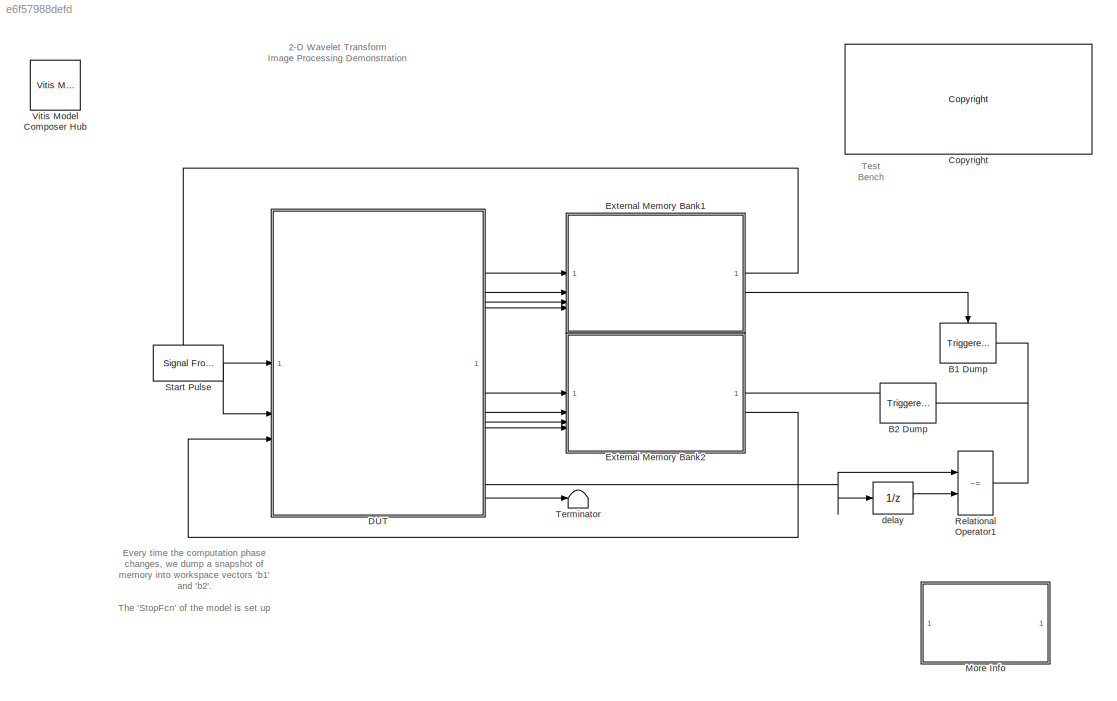
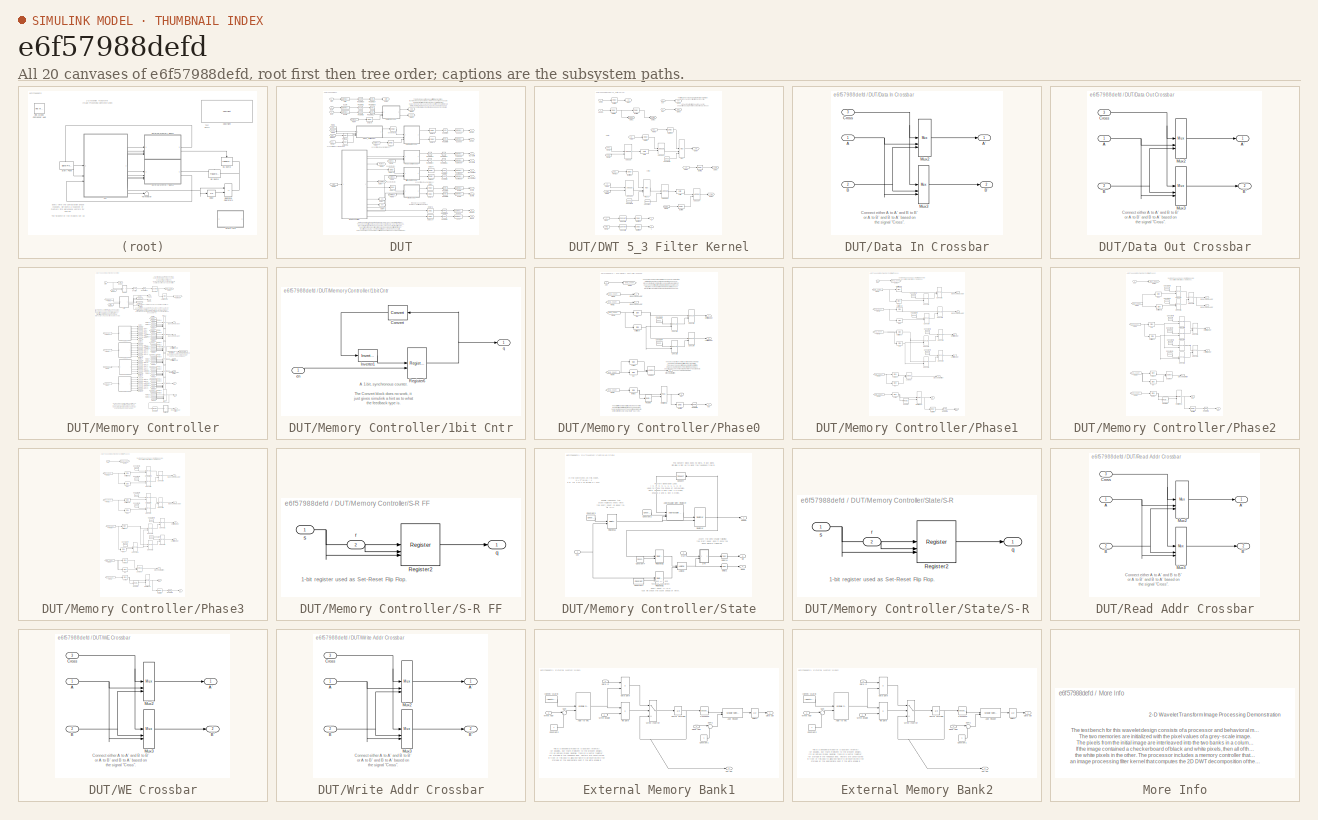
[diagram: thumbnail index - all 20 canvases of the model, root first then tree order]
MODEL slx_e6f57988defd
KIND model
CONFIG AbsTol = auto
CONFIG EnableMultiTasking = on
CONFIG FixedStep = auto
CONFIG MaxStep = auto
CONFIG MinStep = auto
CONFIG PostLoadFcn = open_system('DWT/Processor/Memory Controller','force'); pause(0.50); open_system('DWT');pause(0.50); close_system('DWT/Processor/Memory Controller');pause(0.50); close_system('DWT/Processor');
CONFIG PreLoadFcn = xlrequire('imageData.mat'); xlrequire('PreLoadFcn');
CONFIG RelTol = 1e-3
CONFIG SampleTimeConstraint = Unconstrained
CONFIG SolverName = ode45
CONFIG StartTime = 0.0
CONFIG StopFcn = xlrequire('StopFcn');
CONFIG StopTime = 4096+1024+100
BLOCK [Reference] B1 Dump  REF=dspsnks4/Triggered
To Workspace
  NameLocation = left
  SourceBlock = dspsnks4/Triggered\nTo Workspace
  SourceType = Triggered To Workspace
  UserDataPersistent = on
BLOCK [Reference] B2 Dump  REF=dspsnks4/Triggered
To Workspace
  NameLocation = left
  SourceBlock = dspsnks4/Triggered\nTo Workspace
  SourceType = Triggered To Workspace
  UserDataPersistent = on
BLOCK [Reference] <copyright redacted>
  SourceBlock = hdlUtilities/<copyright redacted>
  SourceType = Xilinx <copyright redacted>
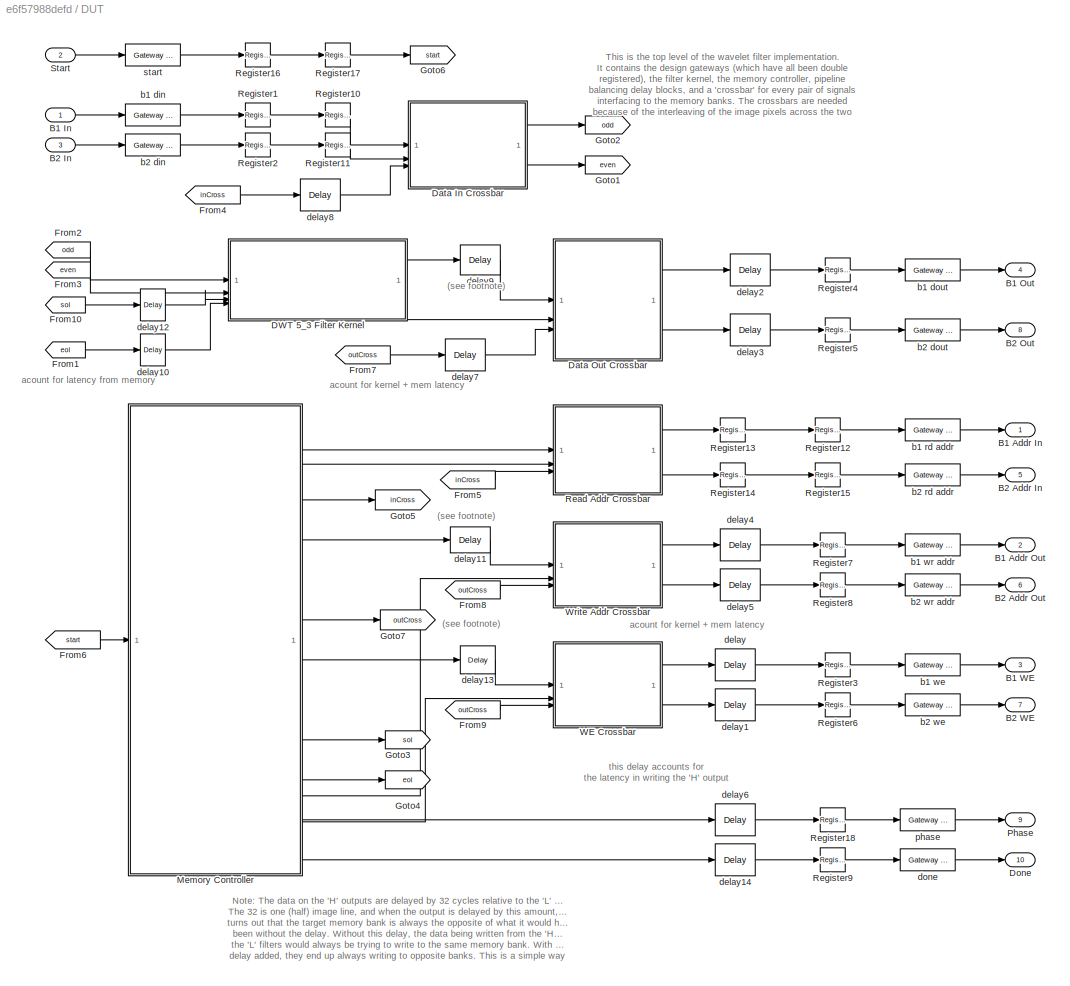
BLOCK [SubSystem] DUT
BLOCK [Outport] DUT/B1 Addr In
  VectorParamsAs1DForOutWhenUnconnected = off
BLOCK [Outport] DUT/B1 Addr Out
  Port = 2
  VectorParamsAs1DForOutWhenUnconnected = off
BLOCK [Inport] DUT/B1 In
  NameLocation = top
BLOCK [Outport] DUT/B1 Out
  Port = 4
  VectorParamsAs1DForOutWhenUnconnected = off
BLOCK [Outport] DUT/B1 WE
  Port = 3
  VectorParamsAs1DForOutWhenUnconnected = off
BLOCK [Outport] DUT/B2 Addr In
  Port = 5
  VectorParamsAs1DForOutWhenUnconnected = off
BLOCK [Outport] DUT/B2 Addr Out
  Port = 6
  VectorParamsAs1DForOutWhenUnconnected = off
BLOCK [Inport] DUT/B2 In
  Port = 3
BLOCK [Outport] DUT/B2 Out
  Port = 8
  VectorParamsAs1DForOutWhenUnconnected = off
BLOCK [Outport] DUT/B2 WE
  Port = 7
  VectorParamsAs1DForOutWhenUnconnected = off
BLOCK [SubSystem] DUT/DWT 5_3 Filter Kernel
BLOCK [Reference] DUT/DWT 5_3 Filter Kernel/AddSub  REF=hdlBasic/AddSub
  SourceBlock = hdlBasic/AddSub
  SourceType = Adder/Subtracter Block
BLOCK [Reference] DUT/DWT 5_3 Filter Kernel/AddSub1  REF=hdlBasic/AddSub
  NameLocation = top
  SourceBlock = hdlBasic/AddSub
  SourceType = Adder/Subtracter Block
BLOCK [Reference] DUT/DWT 5_3 Filter Kernel/AddSub2  REF=hdlBasic/AddSub
  SourceBlock = hdlBasic/AddSub
  SourceType = Adder/Subtracter Block
BLOCK [Reference] DUT/DWT 5_3 Filter Kernel/AddSub3  REF=hdlBasic/AddSub
  SourceBlock = hdlBasic/AddSub
  SourceType = Adder/Subtracter Block
BLOCK [Reference] DUT/DWT 5_3 Filter Kernel/AddSub4  REF=hdlBasic/AddSub
  SourceBlock = hdlBasic/AddSub
  SourceType = Adder/Subtracter Block
BLOCK [Reference] DUT/DWT 5_3 Filter Kernel/Buffer1  REF=hdlBasic/Delay
  SourceBlock = hdlBasic/Delay
  SourceType = Delay Block
BLOCK [Reference] DUT/DWT 5_3 Filter Kernel/Buffer10  REF=hdlBasic/Delay
  SourceBlock = hdlBasic/Delay
  SourceType = Delay Block
BLOCK [Reference] DUT/DWT 5_3 Filter Kernel/Buffer11  REF=hdlBasic/Delay
  SourceBlock = hdlBasic/Delay
  SourceType = Delay Block
BLOCK [Reference] DUT/DWT 5_3 Filter Kernel/Buffer13  REF=hdlBasic/Delay
  SourceBlock = hdlBasic/Delay
  SourceType = Delay Block
BLOCK [Reference] DUT/DWT 5_3 Filter Kernel/Buffer14  REF=hdlBasic/Delay
  SourceBlock = hdlBasic/Delay
  SourceType = Delay Block
BLOCK [Reference] DUT/DWT 5_3 Filter Kernel/Buffer2  REF=hdlBasic/Delay
  SourceBlock = hdlBasic/Delay
  SourceType = Delay Block
BLOCK [Reference] DUT/DWT 5_3 Filter Kernel/Buffer3  REF=hdlBasic/Delay
  SourceBlock = hdlBasic/Delay
  SourceType = Delay Block
BLOCK [Reference] DUT/DWT 5_3 Filter Kernel/Buffer4  REF=hdlBasic/Delay
  SourceBlock = hdlBasic/Delay
  SourceType = Delay Block
BLOCK [Reference] DUT/DWT 5_3 Filter Kernel/Buffer5  REF=hdlBasic/Delay
  SourceBlock = hdlBasic/Delay
  SourceType = Delay Block
BLOCK [Reference] DUT/DWT 5_3 Filter Kernel/Buffer6  REF=hdlBasic/Delay
  SourceBlock = hdlBasic/Delay
  SourceType = Delay Block
BLOCK [Reference] DUT/DWT 5_3 Filter Kernel/Constant  REF=hdlBasic/Constant
  SourceBlock = hdlBasic/Constant
  SourceType = Constant Block Block
BLOCK [Reference] DUT/DWT 5_3 Filter Kernel/Constant1  REF=hdlBasic/Constant
  SourceBlock = hdlBasic/Constant
  SourceType = Constant Block Block
BLOCK [Reference] DUT/DWT 5_3 Filter Kernel/Constant2  REF=hdlBasic/Constant
  SourceBlock = hdlBasic/Constant
  SourceType = Constant Block Block
BLOCK [Reference] DUT/DWT 5_3 Filter Kernel/Convert1  REF=hdlBasic/Convert
  SourceBlock = hdlBasic/Convert
  SourceType = Type Converter Block
BLOCK [Reference] DUT/DWT 5_3 Filter Kernel/Convert2  REF=hdlBasic/Convert
  SourceBlock = hdlBasic/Convert
  SourceType = Type Converter Block
BLOCK [From] DUT/DWT 5_3 Filter Kernel/From
  GotoTag = xn
BLOCK [From] DUT/DWT 5_3 Filter Kernel/From1
  GotoTag = xnP1
BLOCK [From] DUT/DWT 5_3 Filter Kernel/From10
  GotoTag = eol
BLOCK [From] DUT/DWT 5_3 Filter Kernel/From2
  GotoTag = xnM1
BLOCK [From] DUT/DWT 5_3 Filter Kernel/From3
  GotoTag = xnP1
BLOCK [From] DUT/DWT 5_3 Filter Kernel/From4
  GotoTag = yn
BLOCK [From] DUT/DWT 5_3 Filter Kernel/From5
  GotoTag = yn
BLOCK [From] DUT/DWT 5_3 Filter Kernel/From6
  GotoTag = ynM2
BLOCK [From] DUT/DWT 5_3 Filter Kernel/From7
  GotoTag = yn
BLOCK [From] DUT/DWT 5_3 Filter Kernel/From8
  GotoTag = ynM1
BLOCK [From] DUT/DWT 5_3 Filter Kernel/From9
  GotoTag = sol
BLOCK [Goto] DUT/DWT 5_3 Filter Kernel/Goto1
  GotoTag = xnP1
BLOCK [Goto] DUT/DWT 5_3 Filter Kernel/Goto3
  GotoTag = xnM1
BLOCK [Goto] DUT/DWT 5_3 Filter Kernel/Goto4
  GotoTag = yn
BLOCK [Goto] DUT/DWT 5_3 Filter Kernel/Goto5
  GotoTag = ynM2
BLOCK [Goto] DUT/DWT 5_3 Filter Kernel/Goto6
  GotoTag = ynM1
BLOCK [Goto] DUT/DWT 5_3 Filter Kernel/Goto7
  GotoTag = xn
BLOCK [Goto] DUT/DWT 5_3 Filter Kernel/Goto8
  GotoTag = sol
BLOCK [Goto] DUT/DWT 5_3 Filter Kernel/Goto9
  GotoTag = eol
BLOCK [Outport] DUT/DWT 5_3 Filter Kernel/H
  VectorParamsAs1DForOutWhenUnconnected = off
BLOCK [Outport] DUT/DWT 5_3 Filter Kernel/L
  Port = 2
  VectorParamsAs1DForOutWhenUnconnected = off
BLOCK [Reference] DUT/DWT 5_3 Filter Kernel/Mux  REF=hdlBasic/Mux
  SourceBlock = hdlBasic/Mux
  SourceType = Bus Multiplexer Block
BLOCK [Reference] DUT/DWT 5_3 Filter Kernel/Mux1  REF=hdlBasic/Mux
  SourceBlock = hdlBasic/Mux
  SourceType = Bus Multiplexer Block
BLOCK [Reference] DUT/DWT 5_3 Filter Kernel/Shift  REF=hdlBasic/Shift
  SourceBlock = hdlBasic/Shift
  SourceType = Binary Shift Operator Block
BLOCK [Reference] DUT/DWT 5_3 Filter Kernel/Shift1  REF=hdlBasic/Shift
  SourceBlock = hdlBasic/Shift
  SourceType = Binary Shift Operator Block
BLOCK [Inport] DUT/DWT 5_3 Filter Kernel/Xeven
  Port = 2
BLOCK [Inport] DUT/DWT 5_3 Filter Kernel/Xodd
BLOCK [Inport] DUT/DWT 5_3 Filter Kernel/eol
  Port = 4
BLOCK [Inport] DUT/DWT 5_3 Filter Kernel/sol
  Port = 3
BLOCK [SubSystem] DUT/Data In Crossbar
BLOCK [Inport] DUT/Data In Crossbar/A
BLOCK [Outport] DUT/Data In Crossbar/A'
  VectorParamsAs1DForOutWhenUnconnected = off
BLOCK [Inport] DUT/Data In Crossbar/B
  Port = 2
BLOCK [Outport] DUT/Data In Crossbar/B'
  Port = 2
  VectorParamsAs1DForOutWhenUnconnected = off
BLOCK [Inport] DUT/Data In Crossbar/Cross
  Port = 3
BLOCK [Reference] DUT/Data In Crossbar/Mux2  REF=hdlBasic/Mux
  SourceBlock = hdlBasic/Mux
  SourceType = Bus Multiplexer Block
BLOCK [Reference] DUT/Data In Crossbar/Mux3  REF=hdlBasic/Mux
  SourceBlock = hdlBasic/Mux
  SourceType = Bus Multiplexer Block
BLOCK [SubSystem] DUT/Data Out Crossbar
BLOCK [Inport] DUT/Data Out Crossbar/A
BLOCK [Outport] DUT/Data Out Crossbar/A'
  VectorParamsAs1DForOutWhenUnconnected = off
BLOCK [Inport] DUT/Data Out Crossbar/B
  Port = 2
BLOCK [Outport] DUT/Data Out Crossbar/B'
  Port = 2
  VectorParamsAs1DForOutWhenUnconnected = off
BLOCK [Inport] DUT/Data Out Crossbar/Cross
  Port = 3
BLOCK [Reference] DUT/Data Out Crossbar/Mux2  REF=hdlBasic/Mux
  SourceBlock = hdlBasic/Mux
  SourceType = Bus Multiplexer Block
BLOCK [Reference] DUT/Data Out Crossbar/Mux3  REF=hdlBasic/Mux
  SourceBlock = hdlBasic/Mux
  SourceType = Bus Multiplexer Block
BLOCK [Outport] DUT/Done
  Port = 10
  VectorParamsAs1DForOutWhenUnconnected = off
BLOCK [From] DUT/From1
  GotoTag = eol
BLOCK [From] DUT/From10
  GotoTag = sol
BLOCK [From] DUT/From2
  GotoTag = odd
BLOCK [From] DUT/From3
  GotoTag = even
BLOCK [From] DUT/From4
  GotoTag = inCross
BLOCK [From] DUT/From5
  GotoTag = inCross
BLOCK [From] DUT/From6
  GotoTag = start
BLOCK [From] DUT/From7
  GotoTag = outCross
BLOCK [From] DUT/From8
  GotoTag = outCross
BLOCK [From] DUT/From9
  GotoTag = outCross
BLOCK [Goto] DUT/Goto1
  GotoTag = even
BLOCK [Goto] DUT/Goto2
  GotoTag = odd
BLOCK [Goto] DUT/Goto3
  GotoTag = sol
BLOCK [Goto] DUT/Goto4
  GotoTag = eol
BLOCK [Goto] DUT/Goto5
  GotoTag = inCross
BLOCK [Goto] DUT/Goto6
  GotoTag = start
BLOCK [Goto] DUT/Goto7
  GotoTag = outCross
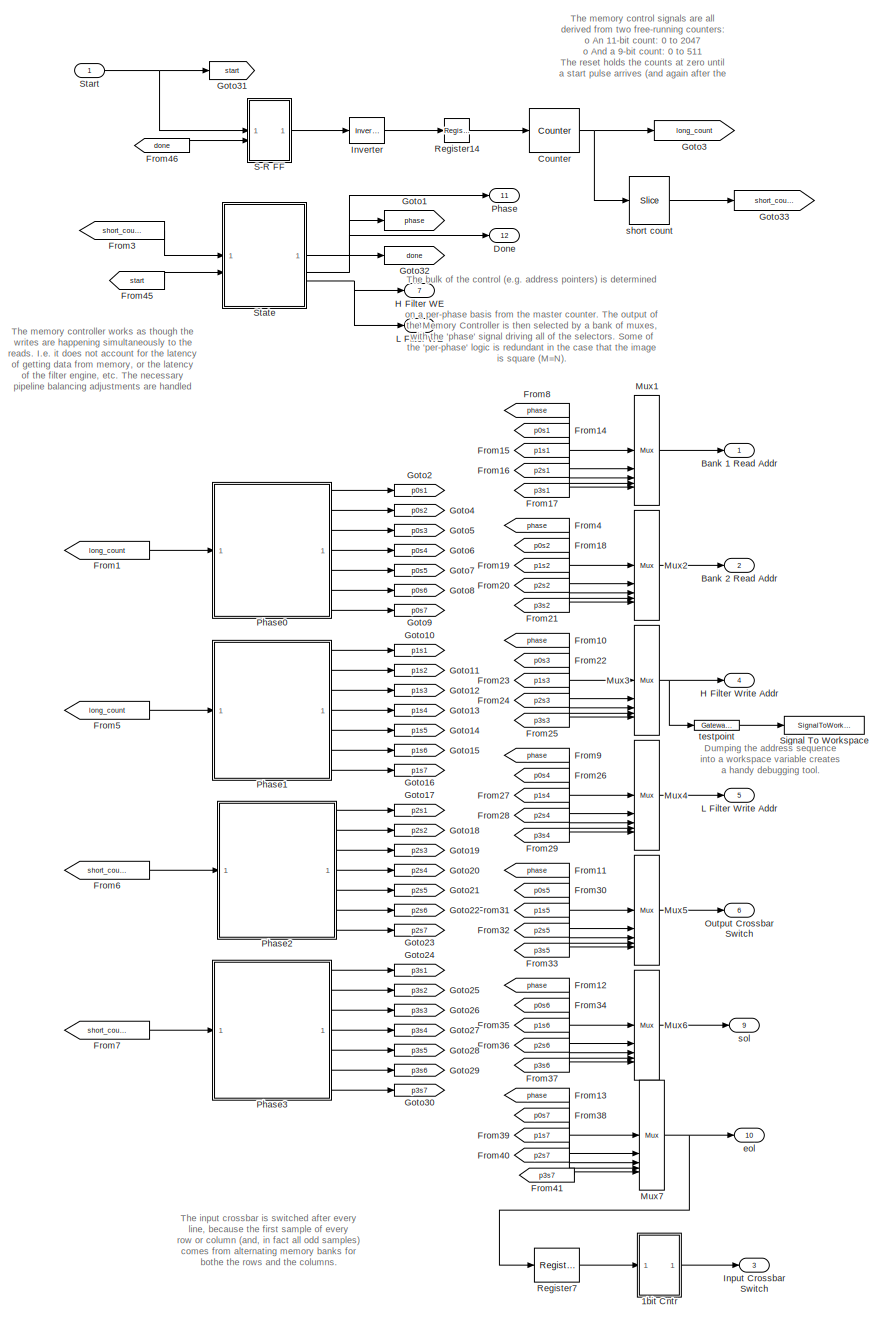
[diagram: DUT/Memory Controller - part 1/1, most of the canvas]
BLOCK [SubSystem] DUT/Memory Controller
BLOCK [SubSystem] DUT/Memory Controller/1bit Cntr
BLOCK [Reference] DUT/Memory Controller/1bit Cntr/Convert  REF=hdlBasic/Convert
  NameLocation = top
  SourceBlock = hdlBasic/Convert
  SourceType = Type Converter Block
BLOCK [Reference] DUT/Memory Controller/1bit Cntr/Inverter1  REF=hdlBasic/Inverter
  SourceBlock = hdlBasic/Inverter
  SourceType = Inverter Block
BLOCK [Reference] DUT/Memory Controller/1bit Cntr/Register6  REF=hdlBasic/Register
  SourceBlock = hdlBasic/Register
  SourceType = Register Block
BLOCK [Inport] DUT/Memory Controller/1bit Cntr/en
BLOCK [Outport] DUT/Memory Controller/1bit Cntr/q
  VectorParamsAs1DForOutWhenUnconnected = off
BLOCK [Outport] DUT/Memory Controller/Bank 1 Read Addr
  VectorParamsAs1DForOutWhenUnconnected = off
BLOCK [Outport] DUT/Memory Controller/Bank 2 Read Addr
  Port = 2
  VectorParamsAs1DForOutWhenUnconnected = off
BLOCK [Reference] DUT/Memory Controller/Counter  REF=hdlBasic/Counter
  SourceBlock = hdlBasic/Counter
  SourceType = Counter Block
BLOCK [Outport] DUT/Memory Controller/Done
  Port = 12
  VectorParamsAs1DForOutWhenUnconnected = off
BLOCK [From] DUT/Memory Controller/From1
  GotoTag = long_count
BLOCK [From] DUT/Memory Controller/From10
  GotoTag = phase
BLOCK [From] DUT/Memory Controller/From11
  GotoTag = phase
BLOCK [From] DUT/Memory Controller/From12
  GotoTag = phase
BLOCK [From] DUT/Memory Controller/From13
  GotoTag = phase
BLOCK [From] DUT/Memory Controller/From14
  GotoTag = p0s1
BLOCK [From] DUT/Memory Controller/From15
  GotoTag = p1s1
BLOCK [From] DUT/Memory Controller/From16
  GotoTag = p2s1
BLOCK [From] DUT/Memory Controller/From17
  GotoTag = p3s1
BLOCK [From] DUT/Memory Controller/From18
  GotoTag = p0s2
BLOCK [From] DUT/Memory Controller/From19
  GotoTag = p1s2
BLOCK [From] DUT/Memory Controller/From20
  GotoTag = p2s2
BLOCK [From] DUT/Memory Controller/From21
  GotoTag = p3s2
BLOCK [From] DUT/Memory Controller/From22
  GotoTag = p0s3
BLOCK [From] DUT/Memory Controller/From23
  GotoTag = p1s3
BLOCK [From] DUT/Memory Controller/From24
  GotoTag = p2s3
BLOCK [From] DUT/Memory Controller/From25
  GotoTag = p3s3
BLOCK [From] DUT/Memory Controller/From26
  GotoTag = p0s4
BLOCK [From] DUT/Memory Controller/From27
  GotoTag = p1s4
BLOCK [From] DUT/Memory Controller/From28
  GotoTag = p2s4
BLOCK [From] DUT/Memory Controller/From29
  GotoTag = p3s4
BLOCK [From] DUT/Memory Controller/From3
  GotoTag = short_count
BLOCK [From] DUT/Memory Controller/From30
  GotoTag = p0s5
BLOCK [From] DUT/Memory Controller/From31
  GotoTag = p1s5
BLOCK [From] DUT/Memory Controller/From32
  GotoTag = p2s5
BLOCK [From] DUT/Memory Controller/From33
  GotoTag = p3s5
BLOCK [From] DUT/Memory Controller/From34
  GotoTag = p0s6
BLOCK [From] DUT/Memory Controller/From35
  GotoTag = p1s6
BLOCK [From] DUT/Memory Controller/From36
  GotoTag = p2s6
BLOCK [From] DUT/Memory Controller/From37
  GotoTag = p3s6
BLOCK [From] DUT/Memory Controller/From38
  GotoTag = p0s7
BLOCK [From] DUT/Memory Controller/From39
  GotoTag = p1s7
BLOCK [From] DUT/Memory Controller/From4
  GotoTag = phase
BLOCK [From] DUT/Memory Controller/From40
  GotoTag = p2s7
BLOCK [From] DUT/Memory Controller/From41
  GotoTag = p3s7
BLOCK [From] DUT/Memory Controller/From45
  GotoTag = start
BLOCK [From] DUT/Memory Controller/From46
  GotoTag = done
BLOCK [From] DUT/Memory Controller/From5
  GotoTag = long_count
BLOCK [From] DUT/Memory Controller/From6
  GotoTag = short_count
BLOCK [From] DUT/Memory Controller/From7
  GotoTag = short_count
BLOCK [From] DUT/Memory Controller/From8
  GotoTag = phase
BLOCK [From] DUT/Memory Controller/From9
  GotoTag = phase
BLOCK [Goto] DUT/Memory Controller/Goto1
  GotoTag = phase
BLOCK [Goto] DUT/Memory Controller/Goto10
  GotoTag = p1s1
BLOCK [Goto] DUT/Memory Controller/Goto11
  GotoTag = p1s2
BLOCK [Goto] DUT/Memory Controller/Goto12
  GotoTag = p1s3
BLOCK [Goto] DUT/Memory Controller/Goto13
  GotoTag = p1s4
BLOCK [Goto] DUT/Memory Controller/Goto14
  GotoTag = p1s5
BLOCK [Goto] DUT/Memory Controller/Goto15
  GotoTag = p1s6
BLOCK [Goto] DUT/Memory Controller/Goto16
  GotoTag = p1s7
BLOCK [Goto] DUT/Memory Controller/Goto17
  GotoTag = p2s1
BLOCK [Goto] DUT/Memory Controller/Goto18
  GotoTag = p2s2
BLOCK [Goto] DUT/Memory Controller/Goto19
  GotoTag = p2s3
BLOCK [Goto] DUT/Memory Controller/Goto2
  GotoTag = p0s1
BLOCK [Goto] DUT/Memory Controller/Goto20
  GotoTag = p2s4
BLOCK [Goto] DUT/Memory Controller/Goto21
  GotoTag = p2s5
BLOCK [Goto] DUT/Memory Controller/Goto22
  GotoTag = p2s6
BLOCK [Goto] DUT/Memory Controller/Goto23
  GotoTag = p2s7
BLOCK [Goto] DUT/Memory Controller/Goto24
  GotoTag = p3s1
BLOCK [Goto] DUT/Memory Controller/Goto25
  GotoTag = p3s2
BLOCK [Goto] DUT/Memory Controller/Goto26
  GotoTag = p3s3
BLOCK [Goto] DUT/Memory Controller/Goto27
  GotoTag = p3s4
BLOCK [Goto] DUT/Memory Controller/Goto28
  GotoTag = p3s5
BLOCK [Goto] DUT/Memory Controller/Goto29
  GotoTag = p3s6
BLOCK [Goto] DUT/Memory Controller/Goto3
  GotoTag = long_count
BLOCK [Goto] DUT/Memory Controller/Goto30
  GotoTag = p3s7
BLOCK [Goto] DUT/Memory Controller/Goto31
  GotoTag = start
BLOCK [Goto] DUT/Memory Controller/Goto32
  GotoTag = done
BLOCK [Goto] DUT/Memory Controller/Goto33
  GotoTag = short_count
BLOCK [Goto] DUT/Memory Controller/Goto4
  GotoTag = p0s2
BLOCK [Goto] DUT/Memory Controller/Goto5
  GotoTag = p0s3
BLOCK [Goto] DUT/Memory Controller/Goto6
  GotoTag = p0s4
BLOCK [Goto] DUT/Memory Controller/Goto7
  GotoTag = p0s5
BLOCK [Goto] DUT/Memory Controller/Goto8
  GotoTag = p0s6
BLOCK [Goto] DUT/Memory Controller/Goto9
  GotoTag = p0s7
BLOCK [Outport] DUT/Memory Controller/H Filter WE
  Port = 7
  VectorParamsAs1DForOutWhenUnconnected = off
BLOCK [Outport] DUT/Memory Controller/H Filter Write Addr
  Port = 4
  VectorParamsAs1DForOutWhenUnconnected = off
BLOCK [Outport] DUT/Memory Controller/Input Crossbar Switch
  Port = 3
  VectorParamsAs1DForOutWhenUnconnected = off
BLOCK [Reference] DUT/Memory Controller/Inverter  REF=hdlBasic/Inverter
  SourceBlock = hdlBasic/Inverter
  SourceType = Inverter Block
BLOCK [Outport] DUT/Memory Controller/L Filter WE
  Port = 8
  VectorParamsAs1DForOutWhenUnconnected = off
BLOCK [Outport] DUT/Memory Controller/L Filter Write Addr
  Port = 5
  VectorParamsAs1DForOutWhenUnconnected = off
BLOCK [Reference] DUT/Memory Controller/Mux1  REF=hdlBasic/Mux
  SourceBlock = hdlBasic/Mux
  SourceType = Bus Multiplexer Block
BLOCK [Reference] DUT/Memory Controller/Mux2  REF=hdlBasic/Mux
  SourceBlock = hdlBasic/Mux
  SourceType = Bus Multiplexer Block
BLOCK [Reference] DUT/Memory Controller/Mux3  REF=hdlBasic/Mux
  SourceBlock = hdlBasic/Mux
  SourceType = Bus Multiplexer Block
BLOCK [Reference] DUT/Memory Controller/Mux4  REF=hdlBasic/Mux
  SourceBlock = hdlBasic/Mux
  SourceType = Bus Multiplexer Block
BLOCK [Reference] DUT/Memory Controller/Mux5  REF=hdlBasic/Mux
  SourceBlock = hdlBasic/Mux
  SourceType = Bus Multiplexer Block
BLOCK [Reference] DUT/Memory Controller/Mux6  REF=hdlBasic/Mux
  SourceBlock = hdlBasic/Mux
  SourceType = Bus Multiplexer Block
BLOCK [Reference] DUT/Memory Controller/Mux7  REF=hdlBasic/Mux
  SourceBlock = hdlBasic/Mux
  SourceType = Bus Multiplexer Block
BLOCK [Outport] DUT/Memory Controller/Output Crossbar Switch
  Port = 6
  VectorParamsAs1DForOutWhenUnconnected = off
BLOCK [Outport] DUT/Memory Controller/Phase
  Port = 11
  VectorParamsAs1DForOutWhenUnconnected = off
BLOCK [SubSystem] DUT/Memory Controller/Phase0
BLOCK [Outport] DUT/Memory Controller/Phase0/Bank 1 Read Addr
  VectorParamsAs1DForOutWhenUnconnected = off
BLOCK [Outport] DUT/Memory Controller/Phase0/Bank 2 Read Addr
  Port = 2
  VectorParamsAs1DForOutWhenUnconnected = off
BLOCK [Reference] DUT/Memory Controller/Phase0/Buffer6  REF=hdlBasic/Delay
  SourceBlock = hdlBasic/Delay
  SourceType = Delay Block
BLOCK [Reference] DUT/Memory Controller/Phase0/Concat1  REF=hdlBasic/Concat
  SourceBlock = hdlBasic/Concat
  SourceType = Bus Concatenator Block
BLOCK [Reference] DUT/Memory Controller/Phase0/Concat2  REF=hdlBasic/Concat
  SourceBlock = hdlBasic/Concat
  SourceType = Bus Concatenator Block
BLOCK [Reference] DUT/Memory Controller/Phase0/Concat3  REF=hdlBasic/Concat
  SourceBlock = hdlBasic/Concat
  SourceType = Bus Concatenator Block
BLOCK [Reference] DUT/Memory Controller/Phase0/Concat4  REF=hdlBasic/Concat
  SourceBlock = hdlBasic/Concat
  SourceType = Bus Concatenator Block
BLOCK [Reference] DUT/Memory Controller/Phase0/Constant2  REF=hdlBasic/Constant
  SourceBlock = hdlBasic/Constant
  SourceType = Constant Block Block
BLOCK [Reference] DUT/Memory Controller/Phase0/Constant4  REF=hdlBasic/Constant
  SourceBlock = hdlBasic/Constant
  SourceType = Constant Block Block
BLOCK [Outport] DUT/Memory Controller/Phase0/Crossbar Switch
  Port = 5
  VectorParamsAs1DForOutWhenUnconnected = off
BLOCK [From] DUT/Memory Controller/Phase0/From1
  GotoTag = long_count
BLOCK [From] DUT/Memory Controller/Phase0/From2
  GotoTag = long_count
BLOCK [From] DUT/Memory Controller/Phase0/From3
  GotoTag = long_count
BLOCK [From] DUT/Memory Controller/Phase0/From4
  GotoTag = long_count
BLOCK [From] DUT/Memory Controller/Phase0/From9
  GotoTag = long_count
BLOCK [Goto] DUT/Memory Controller/Phase0/Goto3
  GotoTag = long_count
BLOCK [Outport] DUT/Memory Controller/Phase0/H Filter W Addr
  Port = 3
  VectorParamsAs1DForOutWhenUnconnected = off
BLOCK [Outport] DUT/Memory Controller/Phase0/L Filter W Addr
  Port = 4
  VectorParamsAs1DForOutWhenUnconnected = off
BLOCK [Reference] DUT/Memory Controller/Phase0/Logical  REF=hdlBasic/Logical
  SourceBlock = hdlBasic/Logical
  SourceType = Logical Block Block
BLOCK [Reference] DUT/Memory Controller/Phase0/Register  REF=hdlBasic/Register
  SourceBlock = hdlBasic/Register
  SourceType = Register Block
BLOCK [Reference] DUT/Memory Controller/Phase0/Register1  REF=hdlBasic/Register
  SourceBlock = hdlBasic/Register
  SourceType = Register Block
BLOCK [Reference] DUT/Memory Controller/Phase0/Relational  REF=hdlBasic/Relational
  SourceBlock = hdlBasic/Relational
  SourceType = Arithmetic Relational Operator Block
BLOCK [Inport] DUT/Memory Controller/Phase0/cnt
BLOCK [Reference] DUT/Memory Controller/Phase0/col lsb  REF=hdlBasic/Slice
  SourceBlock = hdlBasic/Slice
  SourceType = Bit Slice Extractor Block
BLOCK [Outport] DUT/Memory Controller/Phase0/eol
  Port = 7
  VectorParamsAs1DForOutWhenUnconnected = off
BLOCK [Reference] DUT/Memory Controller/Phase0/lsb  REF=hdlBasic/Slice
  SourceBlock = hdlBasic/Slice
  SourceType = Bit Slice Extractor Block
BLOCK [Reference] DUT/Memory Controller/Phase0/partial col  REF=hdlBasic/Slice
  SourceBlock = hdlBasic/Slice
  SourceType = Bit Slice Extractor Block
BLOCK [Reference] DUT/Memory Controller/Phase0/row  REF=hdlBasic/Slice
  SourceBlock = hdlBasic/Slice
  SourceType = Bit Slice Extractor Block
BLOCK [Reference] DUT/Memory Controller/Phase0/row lsb  REF=hdlBasic/Slice
  SourceBlock = hdlBasic/Slice
  SourceType = Bit Slice Extractor Block
BLOCK [Outport] DUT/Memory Controller/Phase0/sol
  Port = 6
  VectorParamsAs1DForOutWhenUnconnected = off
BLOCK [SubSystem] DUT/Memory Controller/Phase1
BLOCK [Outport] DUT/Memory Controller/Phase1/Bank 1 Read Addr
  VectorParamsAs1DForOutWhenUnconnected = off
BLOCK [Outport] DUT/Memory Controller/Phase1/Bank 2 Read Addr
  Port = 2
  VectorParamsAs1DForOutWhenUnconnected = off
BLOCK [Reference] DUT/Memory Controller/Phase1/Buffer6  REF=hdlBasic/Delay
  SourceBlock = hdlBasic/Delay
  SourceType = Delay Block
BLOCK [Reference] DUT/Memory Controller/Phase1/Concat1  REF=hdlBasic/Concat
  SourceBlock = hdlBasic/Concat
  SourceType = Bus Concatenator Block
BLOCK [Reference] DUT/Memory Controller/Phase1/Concat2  REF=hdlBasic/Concat
  SourceBlock = hdlBasic/Concat
  SourceType = Bus Concatenator Block
BLOCK [Reference] DUT/Memory Controller/Phase1/Concat3  REF=hdlBasic/Concat
  SourceBlock = hdlBasic/Concat
  SourceType = Bus Concatenator Block
BLOCK [Reference] DUT/Memory Controller/Phase1/Concat4  REF=hdlBasic/Concat
  SourceBlock = hdlBasic/Concat
  SourceType = Bus Concatenator Block
BLOCK [Reference] DUT/Memory Controller/Phase1/Concat5  REF=hdlBasic/Concat
  SourceBlock = hdlBasic/Concat
  SourceType = Bus Concatenator Block
BLOCK [Reference] DUT/Memory Controller/Phase1/Concat6  REF=hdlBasic/Concat
  SourceBlock = hdlBasic/Concat
  SourceType = Bus Concatenator Block
BLOCK [Reference] DUT/Memory Controller/Phase1/Concat7  REF=hdlBasic/Concat
  SourceBlock = hdlBasic/Concat
  SourceType = Bus Concatenator Block
BLOCK [Reference] DUT/Memory Controller/Phase1/Concat8  REF=hdlBasic/Concat
  SourceBlock = hdlBasic/Concat
  SourceType = Bus Concatenator Block
BLOCK [Reference] DUT/Memory Controller/Phase1/Constant1  REF=hdlBasic/Constant
  SourceBlock = hdlBasic/Constant
  SourceType = Constant Block Block
BLOCK [Reference] DUT/Memory Controller/Phase1/Constant2  REF=hdlBasic/Constant
  SourceBlock = hdlBasic/Constant
  SourceType = Constant Block Block
BLOCK [Reference] DUT/Memory Controller/Phase1/Constant3  REF=hdlBasic/Constant
  SourceBlock = hdlBasic/Constant
  SourceType = Constant Block Block
BLOCK [Reference] DUT/Memory Controller/Phase1/Constant4  REF=hdlBasic/Constant
  SourceBlock = hdlBasic/Constant
  SourceType = Constant Block Block
BLOCK [Outport] DUT/Memory Controller/Phase1/Crossbar Switch
  Port = 5
  VectorParamsAs1DForOutWhenUnconnected = off
BLOCK [From] DUT/Memory Controller/Phase1/From1
  GotoTag = long_count
BLOCK [From] DUT/Memory Controller/Phase1/From2
  GotoTag = long_count
BLOCK [From] DUT/Memory Controller/Phase1/From3
  GotoTag = long_count
BLOCK [From] DUT/Memory Controller/Phase1/From4
  GotoTag = long_count
BLOCK [From] DUT/Memory Controller/Phase1/From9
  GotoTag = long_count
BLOCK [Goto] DUT/Memory Controller/Phase1/Goto3
  GotoTag = long_count
BLOCK [Outport] DUT/Memory Controller/Phase1/H Filter W Addr
  Port = 3
  VectorParamsAs1DForOutWhenUnconnected = off
BLOCK [Outport] DUT/Memory Controller/Phase1/L Filter W Addr
  Port = 4
  VectorParamsAs1DForOutWhenUnconnected = off
BLOCK [Reference] DUT/Memory Controller/Phase1/Logical  REF=hdlBasic/Logical
  SourceBlock = hdlBasic/Logical
  SourceType = Logical Block Block
BLOCK [Reference] DUT/Memory Controller/Phase1/Register  REF=hdlBasic/Register
  SourceBlock = hdlBasic/Register
  SourceType = Register Block
BLOCK [Reference] DUT/Memory Controller/Phase1/Register1  REF=hdlBasic/Register
  SourceBlock = hdlBasic/Register
  SourceType = Register Block
BLOCK [Reference] DUT/Memory Controller/Phase1/Relational  REF=hdlBasic/Relational
  SourceBlock = hdlBasic/Relational
  SourceType = Arithmetic Relational Operator Block
BLOCK [Inport] DUT/Memory Controller/Phase1/cnt
BLOCK [Reference] DUT/Memory Controller/Phase1/col lsb  REF=hdlBasic/Slice
  SourceBlock = hdlBasic/Slice
  SourceType = Bit Slice Extractor Block
BLOCK [Reference] DUT/Memory Controller/Phase1/col lsb1  REF=hdlBasic/Slice
  SourceBlock = hdlBasic/Slice
  SourceType = Bit Slice Extractor Block
BLOCK [Outport] DUT/Memory Controller/Phase1/eol
  Port = 7
  VectorParamsAs1DForOutWhenUnconnected = off
BLOCK [Reference] DUT/Memory Controller/Phase1/lsb  REF=hdlBasic/Slice
  SourceBlock = hdlBasic/Slice
  SourceType = Bit Slice Extractor Block
BLOCK [Reference] DUT/Memory Controller/Phase1/partial col  REF=hdlBasic/Slice
  SourceBlock = hdlBasic/Slice
  SourceType = Bit Slice Extractor Block
BLOCK [Reference] DUT/Memory Controller/Phase1/partial col1  REF=hdlBasic/Slice
  SourceBlock = hdlBasic/Slice
  SourceType = Bit Slice Extractor Block
BLOCK [Reference] DUT/Memory Controller/Phase1/partial col2  REF=hdlBasic/Slice
  SourceBlock = hdlBasic/Slice
  SourceType = Bit Slice Extractor Block
BLOCK [Reference] DUT/Memory Controller/Phase1/row  REF=hdlBasic/Slice
  SourceBlock = hdlBasic/Slice
  SourceType = Bit Slice Extractor Block
BLOCK [Reference] DUT/Memory Controller/Phase1/row1  REF=hdlBasic/Slice
  SourceBlock = hdlBasic/Slice
  SourceType = Bit Slice Extractor Block
BLOCK [Reference] DUT/Memory Controller/Phase1/row2  REF=hdlBasic/Slice
  SourceBlock = hdlBasic/Slice
  SourceType = Bit Slice Extractor Block
BLOCK [Outport] DUT/Memory Controller/Phase1/sol
  Port = 6
  VectorParamsAs1DForOutWhenUnconnected = off
BLOCK [SubSystem] DUT/Memory Controller/Phase2
BLOCK [Outport] DUT/Memory Controller/Phase2/Bank 1 Read Addr
  VectorParamsAs1DForOutWhenUnconnected = off
BLOCK [Outport] DUT/Memory Controller/Phase2/Bank 2 Read Addr
  Port = 2
  VectorParamsAs1DForOutWhenUnconnected = off
BLOCK [Reference] DUT/Memory Controller/Phase2/Buffer6  REF=hdlBasic/Delay
  SourceBlock = hdlBasic/Delay
  SourceType = Delay Block
BLOCK [Reference] DUT/Memory Controller/Phase2/Concat1  REF=hdlBasic/Concat
  SourceBlock = hdlBasic/Concat
  SourceType = Bus Concatenator Block
BLOCK [Reference] DUT/Memory Controller/Phase2/Concat2  REF=hdlBasic/Concat
  SourceBlock = hdlBasic/Concat
  SourceType = Bus Concatenator Block
BLOCK [Reference] DUT/Memory Controller/Phase2/Concat3  REF=hdlBasic/Concat
  SourceBlock = hdlBasic/Concat
  SourceType = Bus Concatenator Block
BLOCK [Reference] DUT/Memory Controller/Phase2/Concat4  REF=hdlBasic/Concat
  SourceBlock = hdlBasic/Concat
  SourceType = Bus Concatenator Block
BLOCK [Reference] DUT/Memory Controller/Phase2/Concat5  REF=hdlBasic/Concat
  SourceBlock = hdlBasic/Concat
  SourceType = Bus Concatenator Block
BLOCK [Reference] DUT/Memory Controller/Phase2/Concat6  REF=hdlBasic/Concat
  SourceBlock = hdlBasic/Concat
  SourceType = Bus Concatenator Block
BLOCK [Reference] DUT/Memory Controller/Phase2/Concat7  REF=hdlBasic/Concat
  SourceBlock = hdlBasic/Concat
  SourceType = Bus Concatenator Block
BLOCK [Reference] DUT/Memory Controller/Phase2/Concat8  REF=hdlBasic/Concat
  SourceBlock = hdlBasic/Concat
  SourceType = Bus Concatenator Block
BLOCK [Reference] DUT/Memory Controller/Phase2/Concat9  REF=hdlBasic/Concat
  SourceBlock = hdlBasic/Concat
  SourceType = Bus Concatenator Block
BLOCK [Reference] DUT/Memory Controller/Phase2/Constant1  REF=hdlBasic/Constant
  SourceBlock = hdlBasic/Constant
  SourceType = Constant Block Block
BLOCK [Reference] DUT/Memory Controller/Phase2/Constant2  REF=hdlBasic/Constant
  SourceBlock = hdlBasic/Constant
  SourceType = Constant Block Block
BLOCK [Reference] DUT/Memory Controller/Phase2/Constant3  REF=hdlBasic/Constant
  SourceBlock = hdlBasic/Constant
  SourceType = Constant Block Block
BLOCK [Reference] DUT/Memory Controller/Phase2/Constant4  REF=hdlBasic/Constant
  SourceBlock = hdlBasic/Constant
  SourceType = Constant Block Block
BLOCK [Reference] DUT/Memory Controller/Phase2/Constant5  REF=hdlBasic/Constant
  SourceBlock = hdlBasic/Constant
  SourceType = Constant Block Block
BLOCK [Reference] DUT/Memory Controller/Phase2/Constant6  REF=hdlBasic/Constant
  SourceBlock = hdlBasic/Constant
  SourceType = Constant Block Block
BLOCK [Outport] DUT/Memory Controller/Phase2/Crossbar Switch
  Port = 5
  VectorParamsAs1DForOutWhenUnconnected = off
BLOCK [From] DUT/Memory Controller/Phase2/From1
  GotoTag = long_count
BLOCK [From] DUT/Memory Controller/Phase2/From3
  GotoTag = long_count
BLOCK [From] DUT/Memory Controller/Phase2/From4
  GotoTag = long_count
BLOCK [From] DUT/Memory Controller/Phase2/From9
  GotoTag = long_count
BLOCK [Goto] DUT/Memory Controller/Phase2/Goto3
  GotoTag = long_count
BLOCK [Outport] DUT/Memory Controller/Phase2/H Filter W Addr
  Port = 3
  VectorParamsAs1DForOutWhenUnconnected = off
BLOCK [Outport] DUT/Memory Controller/Phase2/L Filter W Addr
  Port = 4
  VectorParamsAs1DForOutWhenUnconnected = off
BLOCK [Reference] DUT/Memory Controller/Phase2/Logical  REF=hdlBasic/Logical
  SourceBlock = hdlBasic/Logical
  SourceType = Logical Block Block
BLOCK [Reference] DUT/Memory Controller/Phase2/Register  REF=hdlBasic/Register
  SourceBlock = hdlBasic/Register
  SourceType = Register Block
BLOCK [Reference] DUT/Memory Controller/Phase2/Register1  REF=hdlBasic/Register
  SourceBlock = hdlBasic/Register
  SourceType = Register Block
BLOCK [Reference] DUT/Memory Controller/Phase2/Relational  REF=hdlBasic/Relational
  SourceBlock = hdlBasic/Relational
  SourceType = Arithmetic Relational Operator Block
BLOCK [Inport] DUT/Memory Controller/Phase2/cnt
BLOCK [Reference] DUT/Memory Controller/Phase2/col lsb1  REF=hdlBasic/Slice
  SourceBlock = hdlBasic/Slice
  SourceType = Bit Slice Extractor Block
BLOCK [Outport] DUT/Memory Controller/Phase2/eol
  Port = 7
  VectorParamsAs1DForOutWhenUnconnected = off
BLOCK [Reference] DUT/Memory Controller/Phase2/lsb  REF=hdlBasic/Slice
  SourceBlock = hdlBasic/Slice
  SourceType = Bit Slice Extractor Block
BLOCK [Reference] DUT/Memory Controller/Phase2/partial col  REF=hdlBasic/Slice
  SourceBlock = hdlBasic/Slice
  SourceType = Bit Slice Extractor Block
BLOCK [Reference] DUT/Memory Controller/Phase2/partial col1  REF=hdlBasic/Slice
  SourceBlock = hdlBasic/Slice
  SourceType = Bit Slice Extractor Block
BLOCK [Reference] DUT/Memory Controller/Phase2/row  REF=hdlBasic/Slice
  SourceBlock = hdlBasic/Slice
  SourceType = Bit Slice Extractor Block
BLOCK [Reference] DUT/Memory Controller/Phase2/row lsb  REF=hdlBasic/Slice
  SourceBlock = hdlBasic/Slice
  SourceType = Bit Slice Extractor Block
BLOCK [Reference] DUT/Memory Controller/Phase2/row1  REF=hdlBasic/Slice
  SourceBlock = hdlBasic/Slice
  SourceType = Bit Slice Extractor Block
BLOCK [Outport] DUT/Memory Controller/Phase2/sol
  Port = 6
  VectorParamsAs1DForOutWhenUnconnected = off
BLOCK [SubSystem] DUT/Memory Controller/Phase3
BLOCK [Outport] DUT/Memory Controller/Phase3/Bank 1 Read Addr
  VectorParamsAs1DForOutWhenUnconnected = off
BLOCK [Outport] DUT/Memory Controller/Phase3/Bank 2 Read Addr
  Port = 2
  VectorParamsAs1DForOutWhenUnconnected = off
BLOCK [Reference] DUT/Memory Controller/Phase3/Buffer6  REF=hdlBasic/Delay
  SourceBlock = hdlBasic/Delay
  SourceType = Delay Block
BLOCK [Reference] DUT/Memory Controller/Phase3/Concat1  REF=hdlBasic/Concat
  SourceBlock = hdlBasic/Concat
  SourceType = Bus Concatenator Block
BLOCK [Reference] DUT/Memory Controller/Phase3/Concat10  REF=hdlBasic/Concat
  SourceBlock = hdlBasic/Concat
  SourceType = Bus Concatenator Block
BLOCK [Reference] DUT/Memory Controller/Phase3/Concat11  REF=hdlBasic/Concat
  SourceBlock = hdlBasic/Concat
  SourceType = Bus Concatenator Block
BLOCK [Reference] DUT/Memory Controller/Phase3/Concat2  REF=hdlBasic/Concat
  SourceBlock = hdlBasic/Concat
  SourceType = Bus Concatenator Block
BLOCK [Reference] DUT/Memory Controller/Phase3/Concat3  REF=hdlBasic/Concat
  SourceBlock = hdlBasic/Concat
  SourceType = Bus Concatenator Block
BLOCK [Reference] DUT/Memory Controller/Phase3/Concat4  REF=hdlBasic/Concat
  SourceBlock = hdlBasic/Concat
  SourceType = Bus Concatenator Block
BLOCK [Reference] DUT/Memory Controller/Phase3/Concat5  REF=hdlBasic/Concat
  SourceBlock = hdlBasic/Concat
  SourceType = Bus Concatenator Block
BLOCK [Reference] DUT/Memory Controller/Phase3/Concat6  REF=hdlBasic/Concat
  SourceBlock = hdlBasic/Concat
  SourceType = Bus Concatenator Block
BLOCK [Reference] DUT/Memory Controller/Phase3/Concat7  REF=hdlBasic/Concat
  SourceBlock = hdlBasic/Concat
  SourceType = Bus Concatenator Block
BLOCK [Reference] DUT/Memory Controller/Phase3/Concat8  REF=hdlBasic/Concat
  SourceBlock = hdlBasic/Concat
  SourceType = Bus Concatenator Block
BLOCK [Reference] DUT/Memory Controller/Phase3/Concat9  REF=hdlBasic/Concat
  SourceBlock = hdlBasic/Concat
  SourceType = Bus Concatenator Block
BLOCK [Reference] DUT/Memory Controller/Phase3/Constant1  REF=hdlBasic/Constant
  SourceBlock = hdlBasic/Constant
  SourceType = Constant Block Block
BLOCK [Reference] DUT/Memory Controller/Phase3/Constant2  REF=hdlBasic/Constant
  SourceBlock = hdlBasic/Constant
  SourceType = Constant Block Block
BLOCK [Reference] DUT/Memory Controller/Phase3/Constant3  REF=hdlBasic/Constant
  SourceBlock = hdlBasic/Constant
  SourceType = Constant Block Block
BLOCK [Reference] DUT/Memory Controller/Phase3/Constant4  REF=hdlBasic/Constant
  SourceBlock = hdlBasic/Constant
  SourceType = Constant Block Block
BLOCK [Reference] DUT/Memory Controller/Phase3/Constant5  REF=hdlBasic/Constant
  SourceBlock = hdlBasic/Constant
  SourceType = Constant Block Block
BLOCK [Reference] DUT/Memory Controller/Phase3/Constant6  REF=hdlBasic/Constant
  SourceBlock = hdlBasic/Constant
  SourceType = Constant Block Block
BLOCK [Reference] DUT/Memory Controller/Phase3/Constant7  REF=hdlBasic/Constant
  SourceBlock = hdlBasic/Constant
  SourceType = Constant Block Block
BLOCK [Outport] DUT/Memory Controller/Phase3/Crossbar Switch
  Port = 5
  VectorParamsAs1DForOutWhenUnconnected = off
BLOCK [From] DUT/Memory Controller/Phase3/From1
  GotoTag = long_count
BLOCK [From] DUT/Memory Controller/Phase3/From2
  GotoTag = long_count
BLOCK [From] DUT/Memory Controller/Phase3/From3
  GotoTag = long_count
BLOCK [From] DUT/Memory Controller/Phase3/From4
  GotoTag = long_count
BLOCK [From] DUT/Memory Controller/Phase3/From9
  GotoTag = long_count
BLOCK [Goto] DUT/Memory Controller/Phase3/Goto3
  GotoTag = long_count
BLOCK [Outport] DUT/Memory Controller/Phase3/H Filter W Addr
  Port = 3
  VectorParamsAs1DForOutWhenUnconnected = off
BLOCK [Outport] DUT/Memory Controller/Phase3/L Filter W Addr
  Port = 4
  VectorParamsAs1DForOutWhenUnconnected = off
BLOCK [Reference] DUT/Memory Controller/Phase3/Logical  REF=hdlBasic/Logical
  SourceBlock = hdlBasic/Logical
  SourceType = Logical Block Block
BLOCK [Reference] DUT/Memory Controller/Phase3/Register  REF=hdlBasic/Register
  SourceBlock = hdlBasic/Register
  SourceType = Register Block
BLOCK [Reference] DUT/Memory Controller/Phase3/Register1  REF=hdlBasic/Register
  SourceBlock = hdlBasic/Register
  SourceType = Register Block
BLOCK [Reference] DUT/Memory Controller/Phase3/Relational  REF=hdlBasic/Relational
  SourceBlock = hdlBasic/Relational
  SourceType = Arithmetic Relational Operator Block
BLOCK [Inport] DUT/Memory Controller/Phase3/cnt
BLOCK [Reference] DUT/Memory Controller/Phase3/col lsb  REF=hdlBasic/Slice
  SourceBlock = hdlBasic/Slice
  SourceType = Bit Slice Extractor Block
BLOCK [Reference] DUT/Memory Controller/Phase3/col lsb1  REF=hdlBasic/Slice
  SourceBlock = hdlBasic/Slice
  SourceType = Bit Slice Extractor Block
BLOCK [Outport] DUT/Memory Controller/Phase3/eol
  Port = 7
  VectorParamsAs1DForOutWhenUnconnected = off
BLOCK [Reference] DUT/Memory Controller/Phase3/lsb  REF=hdlBasic/Slice
  SourceBlock = hdlBasic/Slice
  SourceType = Bit Slice Extractor Block
BLOCK [Reference] DUT/Memory Controller/Phase3/partial col  REF=hdlBasic/Slice
  SourceBlock = hdlBasic/Slice
  SourceType = Bit Slice Extractor Block
BLOCK [Reference] DUT/Memory Controller/Phase3/partial col1  REF=hdlBasic/Slice
  SourceBlock = hdlBasic/Slice
  SourceType = Bit Slice Extractor Block
BLOCK [Reference] DUT/Memory Controller/Phase3/partial col2  REF=hdlBasic/Slice
  SourceBlock = hdlBasic/Slice
  SourceType = Bit Slice Extractor Block
BLOCK [Reference] DUT/Memory Controller/Phase3/row  REF=hdlBasic/Slice
  SourceBlock = hdlBasic/Slice
  SourceType = Bit Slice Extractor Block
BLOCK [Reference] DUT/Memory Controller/Phase3/row1  REF=hdlBasic/Slice
  SourceBlock = hdlBasic/Slice
  SourceType = Bit Slice Extractor Block
BLOCK [Reference] DUT/Memory Controller/Phase3/row2  REF=hdlBasic/Slice
  SourceBlock = hdlBasic/Slice
  SourceType = Bit Slice Extractor Block
BLOCK [Outport] DUT/Memory Controller/Phase3/sol
  Port = 6
  VectorParamsAs1DForOutWhenUnconnected = off
BLOCK [Reference] DUT/Memory Controller/Register14  REF=hdlBasic/Register
  SourceBlock = hdlBasic/Register
  SourceType = Register Block
BLOCK [Reference] DUT/Memory Controller/Register7  REF=hdlBasic/Register
  SourceBlock = hdlBasic/Register
  SourceType = Register Block
BLOCK [SubSystem] DUT/Memory Controller/S-R FF
BLOCK [Reference] DUT/Memory Controller/S-R FF/Register2  REF=hdlBasic/Register
  SourceBlock = hdlBasic/Register
  SourceType = Register Block
BLOCK [Outport] DUT/Memory Controller/S-R FF/q
  VectorParamsAs1DForOutWhenUnconnected = off
BLOCK [Inport] DUT/Memory Controller/S-R FF/r
  Port = 2
BLOCK [Inport] DUT/Memory Controller/S-R FF/s
BLOCK [SignalToWorkspace] DUT/Memory Controller/Signal To Workspace
  CopyFcn = dspblkcopystw(gcbh);
  MaxDataPoints = inf
  Save2DSignal = 3-D array (concatenate along third dimension)
  VariableName = HWriteAddr
BLOCK [Inport] DUT/Memory Controller/Start
BLOCK [SubSystem] DUT/Memory Controller/State
BLOCK [Reference] DUT/Memory Controller/State/Addressable Shift Register  REF=hdlBasic/Addressable Shift Register
  NameLocation = top
  SourceBlock = hdlBasic/Addressable Shift Register
  SourceType = Addressable Shift Register Block
BLOCK [Reference] DUT/Memory Controller/State/Constant1  REF=hdlBasic/Constant
  SourceBlock = hdlBasic/Constant
  SourceType = Constant Block Block
BLOCK [Reference] DUT/Memory Controller/State/Constant2  REF=hdlBasic/Constant
  SourceBlock = hdlBasic/Constant
  SourceType = Constant Block Block
BLOCK [Reference] DUT/Memory Controller/State/Constant3  REF=hdlBasic/Constant
  SourceBlock = hdlBasic/Constant
  SourceType = Constant Block Block
BLOCK [Reference] DUT/Memory Controller/State/Constant4  REF=hdlBasic/Constant
  SourceBlock = hdlBasic/Constant
  SourceType = Constant Block Block
BLOCK [Reference] DUT/Memory Controller/State/Convert  REF=hdlBasic/Convert
  NameLocation = top
  SourceBlock = hdlBasic/Convert
  SourceType = Type Converter Block
BLOCK [Reference] DUT/Memory Controller/State/Logical  REF=hdlBasic/Logical
  SourceBlock = hdlBasic/Logical
  SourceType = Logical Block Block
BLOCK [Reference] DUT/Memory Controller/State/Register  REF=hdlBasic/Register
  NameLocation = top
  SourceBlock = hdlBasic/Register
  SourceType = Register Block
BLOCK [Reference] DUT/Memory Controller/State/Relational  REF=hdlBasic/Relational
  SourceBlock = hdlBasic/Relational
  SourceType = Arithmetic Relational Operator Block
BLOCK [Reference] DUT/Memory Controller/State/Relational1  REF=hdlBasic/Relational
  SourceBlock = hdlBasic/Relational
  SourceType = Arithmetic Relational Operator Block
BLOCK [Reference] DUT/Memory Controller/State/Relational2  REF=hdlBasic/Relational
  SourceBlock = hdlBasic/Relational
  SourceType = Arithmetic Relational Operator Block
BLOCK [SubSystem] DUT/Memory Controller/State/S-R
BLOCK [Reference] DUT/Memory Controller/State/S-R/Register2  REF=hdlBasic/Register
  SourceBlock = hdlBasic/Register
  SourceType = Register Block
BLOCK [Outport] DUT/Memory Controller/State/S-R/q
  VectorParamsAs1DForOutWhenUnconnected = off
BLOCK [Inport] DUT/Memory Controller/State/S-R/r
  Port = 2
BLOCK [Inport] DUT/Memory Controller/State/S-R/s
BLOCK [Inport] DUT/Memory Controller/State/cnt
BLOCK [Reference] DUT/Memory Controller/State/delay1  REF=hdlBasic/Delay
  NameLocation = top
  SourceBlock = hdlBasic/Delay
  SourceType = Delay Block
BLOCK [Reference] DUT/Memory Controller/State/delay14  REF=hdlBasic/Delay
  NameLocation = top
  SourceBlock = hdlBasic/Delay
  SourceType = Delay Block
BLOCK [Outport] DUT/Memory Controller/State/done
  Port = 2
  VectorParamsAs1DForOutWhenUnconnected = off
BLOCK [Outport] DUT/Memory Controller/State/phase
  VectorParamsAs1DForOutWhenUnconnected = off
BLOCK [Inport] DUT/Memory Controller/State/start
  Port = 2
BLOCK [Outport] DUT/Memory Controller/State/we
  Port = 3
  VectorParamsAs1DForOutWhenUnconnected = off
BLOCK [Outport] DUT/Memory Controller/eol
  Port = 10
  VectorParamsAs1DForOutWhenUnconnected = off
BLOCK [Reference] DUT/Memory Controller/short count  REF=hdlBasic/Slice
  SourceBlock = hdlBasic/Slice
  SourceType = Bit Slice Extractor Block
BLOCK [Outport] DUT/Memory Controller/sol
  Port = 9
  VectorParamsAs1DForOutWhenUnconnected = off
BLOCK [Reference] DUT/Memory Controller/testpoint  REF=hdlBasic/Gateway Out
  SourceBlock = hdlBasic/Gateway Out
  SourceType = Gateway Out Block
BLOCK [Outport] DUT/Phase
  Port = 9
  VectorParamsAs1DForOutWhenUnconnected = off
BLOCK [SubSystem] DUT/Read Addr Crossbar
BLOCK [Inport] DUT/Read Addr Crossbar/A
BLOCK [Outport] DUT/Read Addr Crossbar/A'
  VectorParamsAs1DForOutWhenUnconnected = off
BLOCK [Inport] DUT/Read Addr Crossbar/B
  Port = 2
BLOCK [Outport] DUT/Read Addr Crossbar/B'
  Port = 2
  VectorParamsAs1DForOutWhenUnconnected = off
BLOCK [Inport] DUT/Read Addr Crossbar/Cross
  Port = 3
BLOCK [Reference] DUT/Read Addr Crossbar/Mux2  REF=hdlBasic/Mux
  SourceBlock = hdlBasic/Mux
  SourceType = Bus Multiplexer Block
BLOCK [Reference] DUT/Read Addr Crossbar/Mux3  REF=hdlBasic/Mux
  SourceBlock = hdlBasic/Mux
  SourceType = Bus Multiplexer Block
BLOCK [Reference] DUT/Register1  REF=hdlBasic/Register
  SourceBlock = hdlBasic/Register
  SourceType = Register Block
BLOCK [Reference] DUT/Register10  REF=hdlBasic/Register
  SourceBlock = hdlBasic/Register
  SourceType = Register Block
BLOCK [Reference] DUT/Register11  REF=hdlBasic/Register
  SourceBlock = hdlBasic/Register
  SourceType = Register Block
BLOCK [Reference] DUT/Register12  REF=hdlBasic/Register
  SourceBlock = hdlBasic/Register
  SourceType = Register Block
BLOCK [Reference] DUT/Register13  REF=hdlBasic/Register
  SourceBlock = hdlBasic/Register
  SourceType = Register Block
BLOCK [Reference] DUT/Register14  REF=hdlBasic/Register
  SourceBlock = hdlBasic/Register
  SourceType = Register Block
BLOCK [Reference] DUT/Register15  REF=hdlBasic/Register
  SourceBlock = hdlBasic/Register
  SourceType = Register Block
BLOCK [Reference] DUT/Register16  REF=hdlBasic/Register
  SourceBlock = hdlBasic/Register
  SourceType = Register Block
BLOCK [Reference] DUT/Register17  REF=hdlBasic/Register
  SourceBlock = hdlBasic/Register
  SourceType = Register Block
BLOCK [Reference] DUT/Register18  REF=hdlBasic/Register
  SourceBlock = hdlBasic/Register
  SourceType = Register Block
BLOCK [Reference] DUT/Register2  REF=hdlBasic/Register
  SourceBlock = hdlBasic/Register
  SourceType = Register Block
BLOCK [Reference] DUT/Register3  REF=hdlBasic/Register
  SourceBlock = hdlBasic/Register
  SourceType = Register Block
BLOCK [Reference] DUT/Register4  REF=hdlBasic/Register
  SourceBlock = hdlBasic/Register
  SourceType = Register Block
BLOCK [Reference] DUT/Register5  REF=hdlBasic/Register
  SourceBlock = hdlBasic/Register
  SourceType = Register Block
BLOCK [Reference] DUT/Register6  REF=hdlBasic/Register
  SourceBlock = hdlBasic/Register
  SourceType = Register Block
BLOCK [Reference] DUT/Register7  REF=hdlBasic/Register
  SourceBlock = hdlBasic/Register
  SourceType = Register Block
BLOCK [Reference] DUT/Register8  REF=hdlBasic/Register
  SourceBlock = hdlBasic/Register
  SourceType = Register Block
BLOCK [Reference] DUT/Register9  REF=hdlBasic/Register
  SourceBlock = hdlBasic/Register
  SourceType = Register Block
BLOCK [Inport] DUT/Start
  NameLocation = top
  Port = 2
BLOCK [SubSystem] DUT/WE Crossbar
BLOCK [Inport] DUT/WE Crossbar/A
BLOCK [Outport] DUT/WE Crossbar/A'
  VectorParamsAs1DForOutWhenUnconnected = off
BLOCK [Inport] DUT/WE Crossbar/B
  Port = 2
BLOCK [Outport] DUT/WE Crossbar/B'
  Port = 2
  VectorParamsAs1DForOutWhenUnconnected = off
BLOCK [Inport] DUT/WE Crossbar/Cross
  Port = 3
BLOCK [Reference] DUT/WE Crossbar/Mux2  REF=hdlBasic/Mux
  SourceBlock = hdlBasic/Mux
  SourceType = Bus Multiplexer Block
BLOCK [Reference] DUT/WE Crossbar/Mux3  REF=hdlBasic/Mux
  SourceBlock = hdlBasic/Mux
  SourceType = Bus Multiplexer Block
BLOCK [SubSystem] DUT/Write Addr Crossbar
BLOCK [Inport] DUT/Write Addr Crossbar/A
BLOCK [Outport] DUT/Write Addr Crossbar/A'
  VectorParamsAs1DForOutWhenUnconnected = off
BLOCK [Inport] DUT/Write Addr Crossbar/B
  Port = 2
BLOCK [Outport] DUT/Write Addr Crossbar/B'
  Port = 2
  VectorParamsAs1DForOutWhenUnconnected = off
BLOCK [Inport] DUT/Write Addr Crossbar/Cross
  Port = 3
BLOCK [Reference] DUT/Write Addr Crossbar/Mux2  REF=hdlBasic/Mux
  SourceBlock = hdlBasic/Mux
  SourceType = Bus Multiplexer Block
BLOCK [Reference] DUT/Write Addr Crossbar/Mux3  REF=hdlBasic/Mux
  SourceBlock = hdlBasic/Mux
  SourceType = Bus Multiplexer Block
BLOCK [Reference] DUT/b1 din  REF=hdlBasic/Gateway In
  NameLocation = top
  SourceBlock = hdlBasic/Gateway In
  SourceType = Gateway In Block
BLOCK [Reference] DUT/b1 dout  REF=hdlBasic/Gateway Out
  NameLocation = top
  SourceBlock = hdlBasic/Gateway Out
  SourceType = Gateway Out Block
BLOCK [Reference] DUT/b1 rd addr  REF=hdlBasic/Gateway Out
  SourceBlock = hdlBasic/Gateway Out
  SourceType = Gateway Out Block
BLOCK [Reference] DUT/b1 we  REF=hdlBasic/Gateway Out
  SourceBlock = hdlBasic/Gateway Out
  SourceType = Gateway Out Block
BLOCK [Reference] DUT/b1 wr addr  REF=hdlBasic/Gateway Out
  SourceBlock = hdlBasic/Gateway Out
  SourceType = Gateway Out Block
BLOCK [Reference] DUT/b2 din  REF=hdlBasic/Gateway In
  SourceBlock = hdlBasic/Gateway In
  SourceType = Gateway In Block
BLOCK [Reference] DUT/b2 dout  REF=hdlBasic/Gateway Out
  SourceBlock = hdlBasic/Gateway Out
  SourceType = Gateway Out Block
BLOCK [Reference] DUT/b2 rd addr  REF=hdlBasic/Gateway Out
  SourceBlock = hdlBasic/Gateway Out
  SourceType = Gateway Out Block
BLOCK [Reference] DUT/b2 we  REF=hdlBasic/Gateway Out
  SourceBlock = hdlBasic/Gateway Out
  SourceType = Gateway Out Block
BLOCK [Reference] DUT/b2 wr addr  REF=hdlBasic/Gateway Out
  SourceBlock = hdlBasic/Gateway Out
  SourceType = Gateway Out Block
BLOCK [Reference] DUT/delay  REF=hdlBasic/Delay
  SourceBlock = hdlBasic/Delay
  SourceType = Delay Block
BLOCK [Reference] DUT/delay1  REF=hdlBasic/Delay
  SourceBlock = hdlBasic/Delay
  SourceType = Delay Block
BLOCK [Reference] DUT/delay10  REF=hdlBasic/Delay
  SourceBlock = hdlBasic/Delay
  SourceType = Delay Block
BLOCK [Reference] DUT/delay11  REF=hdlBasic/Delay
  SourceBlock = hdlBasic/Delay
  SourceType = Delay Block
BLOCK [Reference] DUT/delay12  REF=hdlBasic/Delay
  SourceBlock = hdlBasic/Delay
  SourceType = Delay Block
BLOCK [Reference] DUT/delay13  REF=hdlBasic/Delay
  SourceBlock = hdlBasic/Delay
  SourceType = Delay Block
BLOCK [Reference] DUT/delay14  REF=hdlBasic/Delay
  SourceBlock = hdlBasic/Delay
  SourceType = Delay Block
BLOCK [Reference] DUT/delay2  REF=hdlBasic/Delay
  NameLocation = top
  SourceBlock = hdlBasic/Delay
  SourceType = Delay Block
BLOCK [Reference] DUT/delay3  REF=hdlBasic/Delay
  SourceBlock = hdlBasic/Delay
  SourceType = Delay Block
BLOCK [Reference] DUT/delay4  REF=hdlBasic/Delay
  SourceBlock = hdlBasic/Delay
  SourceType = Delay Block
BLOCK [Reference] DUT/delay5  REF=hdlBasic/Delay
  SourceBlock = hdlBasic/Delay
  SourceType = Delay Block
BLOCK [Reference] DUT/delay6  REF=hdlBasic/Delay
  SourceBlock = hdlBasic/Delay
  SourceType = Delay Block
BLOCK [Reference] DUT/delay7  REF=hdlBasic/Delay
  SourceBlock = hdlBasic/Delay
  SourceType = Delay Block
BLOCK [Reference] DUT/delay8  REF=hdlBasic/Delay
  SourceBlock = hdlBasic/Delay
  SourceType = Delay Block
BLOCK [Reference] DUT/delay9  REF=hdlBasic/Delay
  SourceBlock = hdlBasic/Delay
  SourceType = Delay Block
BLOCK [Reference] DUT/done  REF=hdlBasic/Gateway Out
  SourceBlock = hdlBasic/Gateway Out
  SourceType = Gateway Out Block
BLOCK [Reference] DUT/phase  REF=hdlBasic/Gateway Out
  SourceBlock = hdlBasic/Gateway Out
  SourceType = Gateway Out Block
BLOCK [Reference] DUT/start  REF=hdlBasic/Gateway In
  NameLocation = top
  SourceBlock = hdlBasic/Gateway In
  SourceType = Gateway In Block
BLOCK [SubSystem] External Memory Bank1
  NameLocation = top
BLOCK [Reference] External Memory Bank1/Addr Reader  REF=dspindex/Variable
Selector
  SourceBlock = dspindex/Variable\nSelector
  SourceType = Variable Selector
BLOCK [Reference] External Memory Bank1/Addr to Vec  REF=dspindex/Variable
Selector
  SourceBlock = dspindex/Variable\nSelector
  SourceType = Variable Selector
BLOCK [Constant] External Memory Bank1/Constant1
BLOCK [Constant] External Memory Bank1/Constant2
BLOCK [Inport] External Memory Bank1/Data In
  Port = 4
BLOCK [Outport] External Memory Bank1/Data Out
  VectorParamsAs1DForOutWhenUnconnected = off
BLOCK [IdentityMatrix] External Memory Bank1/Identity Matrix
  OutputDimensions = depth
BLOCK [Inport] External Memory Bank1/Read Addr
BLOCK [Sum] External Memory Bank1/Sum
  InputSameDT = on
  Inputs = |++
  OutDataTypeStr = Inherit: Same as first input
  SaturateOnIntegerOverflow = on
BLOCK [Sum] External Memory Bank1/Sum1
  InputSameDT = on
  Inputs = |++
  OutDataTypeStr = Inherit: Same as first input
  SaturateOnIntegerOverflow = on
BLOCK [Math] External Memory Bank1/Transpose
  Operator = transpose
BLOCK [Outport] External Memory Bank1/Vec Out
  Port = 2
  VectorParamsAs1DForOutWhenUnconnected = off
BLOCK [UnitDelay] External Memory Bank1/Vector Storage
  HasFrameUpgradeWarning = on
  InitialCondition = init_vec
BLOCK [Inport] External Memory Bank1/Write Addr
  Port = 2
BLOCK [Inport] External Memory Bank1/Write Enable
  Port = 3
BLOCK [Switch] External Memory Bank1/Write Inserter
  Threshold = 1
BLOCK [Product] External Memory Bank1/data gate
  InputSameDT = on
  OutDataTypeStr = Inherit: Same as first input
  SaturateOnIntegerOverflow = on
BLOCK [UnitDelay] External Memory Bank1/delay1
  HasFrameUpgradeWarning = on
BLOCK [Product] External Memory Bank1/we gate
  InputSameDT = on
  OutDataTypeStr = Inherit: Same as first input
  SaturateOnIntegerOverflow = on
BLOCK [SubSystem] External Memory Bank2
BLOCK [Reference] External Memory Bank2/Addr Reader  REF=dspindex/Variable
Selector
  SourceBlock = dspindex/Variable\nSelector
  SourceType = Variable Selector
BLOCK [Reference] External Memory Bank2/Addr to Vec  REF=dspindex/Variable
Selector
  SourceBlock = dspindex/Variable\nSelector
  SourceType = Variable Selector
BLOCK [Constant] External Memory Bank2/Constant1
BLOCK [Constant] External Memory Bank2/Constant2
BLOCK [Inport] External Memory Bank2/Data In
  Port = 4
BLOCK [Outport] External Memory Bank2/Data Out
  Port = 2
  VectorParamsAs1DForOutWhenUnconnected = off
BLOCK [IdentityMatrix] External Memory Bank2/Identity Matrix
  OutputDimensions = depth
BLOCK [Inport] External Memory Bank2/Read Addr
BLOCK [Sum] External Memory Bank2/Sum
  InputSameDT = on
  Inputs = |++
  OutDataTypeStr = Inherit: Same as first input
  SaturateOnIntegerOverflow = on
BLOCK [Sum] External Memory Bank2/Sum1
  InputSameDT = on
  Inputs = |++
  OutDataTypeStr = Inherit: Same as first input
  SaturateOnIntegerOverflow = on
BLOCK [Math] External Memory Bank2/Transpose
  Operator = transpose
BLOCK [Outport] External Memory Bank2/Vec Out
  VectorParamsAs1DForOutWhenUnconnected = off
BLOCK [UnitDelay] External Memory Bank2/Vector Storage
  HasFrameUpgradeWarning = on
  InitialCondition = init_vec
BLOCK [Inport] External Memory Bank2/Write Addr
  Port = 2
BLOCK [Inport] External Memory Bank2/Write Enable
  Port = 3
BLOCK [Switch] External Memory Bank2/Write Inserter
  Threshold = 1
BLOCK [Product] External Memory Bank2/data gate
  InputSameDT = on
  OutDataTypeStr = Inherit: Same as first input
  SaturateOnIntegerOverflow = on
BLOCK [UnitDelay] External Memory Bank2/delay1
  HasFrameUpgradeWarning = on
BLOCK [Product] External Memory Bank2/we gate
  InputSameDT = on
  OutDataTypeStr = Inherit: Same as first input
  SaturateOnIntegerOverflow = on
BLOCK [SubSystem] More Info
BLOCK [RelationalOperator] Relational Operator1
  Operator = ~=
BLOCK [Reference] Start Pulse  REF=dspsrcs4/Signal From
Workspace
  SourceBlock = dspsrcs4/Signal From\nWorkspace
  SourceType = Signal From Workspace
BLOCK [Terminator] Terminator
BLOCK [Reference] Vitis Model Composer Hub  REF=vmcUtilities/Vitis Model Composer Hub
  SourceBlock = vmcUtilities/Vitis Model Composer Hub
  SourceType = VMC Hub
  Tag = genX
  UserDataPersistent = on
BLOCK [UnitDelay] delay
  HasFrameUpgradeWarning = on
  InitialCondition = -1
ANNOTATION (root): 2-D Wavelet Transform Image Processing Demonstration
ANNOTATION (root): Every time the computation phase changes, we dump a snapshot of memory into workspace vectors 'b1' and 'b2'. The 'StopFcn' of the model is set up to analyze this data and to display it as images.
ANNOTATION (root): Test Bench
ANNOTATION DUT: (see footnote)
ANNOTATION DUT: Note: The data on the 'H' outputs are delayed by 32 cycles relative to the 'L' outputs. The 32 is one (half) image line, and when the output is delayed by this amount, it turns out that the target memory bank is always the opposite of what it would have been without the delay. Without this delay, the data being written from the 'H' and the 'L' filters would always be trying to write to the same me...<+147ch>
ANNOTATION DUT: This is the top level of the wavelet filter implementation. It contains the design gateways (which have all been double registered), the filter kernel, the memory controller, pipeline balancing delay blocks, and a 'crossbar' for every pair of signals interfacing to the memory banks. The crossbars are needed because of the interleaving of the image pixels across the two memory banks. The interleavi...<+118ch>
ANNOTATION DUT: acount for kernel + mem latency
ANNOTATION DUT: acount for latency from memory
ANNOTATION DUT: this delay accounts for the latency in writing the 'H' output
ANNOTATION DUT/DWT 5_3 Filter Kernel: "H" Filter
ANNOTATION DUT/DWT 5_3 Filter Kernel: "L" Filter
ANNOTATION DUT/DWT 5_3 Filter Kernel: This filter kernel computes the following transformation: H(2n+1) = X(2n+1) - floor ( [ X(2n) + X(2n+2) ] / 2 ) L(2n) = X(2n) + floor ( [ H(2n-1) + H(2n+1) + 2 ] / 4 ) on a per-line basis, where lines are defined by the sol (start-of-line) and eol (end-of-line) signals, and where the odd samples (e.g. X(2n+1)) and even samples (e.g. X(2n)) are supplied on separate input channels. Extrapolation fro...<+464ch>
ANNOTATION DUT/Data In Crossbar: Connect either A to A' and B to B' or A to B' and B to A' based on the signal "Cross".
ANNOTATION DUT/Data Out Crossbar: Connect either A to A' and B to B' or A to B' and B to A' based on the signal "Cross".
ANNOTATION DUT/Memory Controller: Dumping the address sequence into a workspace variable creates a handy debugging tool.
ANNOTATION DUT/Memory Controller: The bulk of the control (e.g. address pointers) is determined on a per-phase basis from the master counter. The output of the Memory Controller is then selected by a bank of muxes, with the 'phase' signal driving all of the selectors. Some of the 'per-phase' logic is redundant in the case that the image is square (M=N).
ANNOTATION DUT/Memory Controller: The input crossbar is switched after every line, because the first sample of every row or column (and, in fact all odd samples) comes from alternating memory banks for bothe the rows and the columns.
ANNOTATION DUT/Memory Controller: The memory control signals are all derived from two free-running counters: o An 11-bit count: 0 to 2047 o And a 9-bit count: 0 to 511 The reset holds the counts at zero until a start pulse arrives (and again after the done signal is produced).
ANNOTATION DUT/Memory Controller: The memory controller works as though the writes are happening simultaneously to the reads. I.e. it does not account for the latency of getting data from memory, or the latency of the filter engine, etc. The necessary pipeline balancing adjustments are handled outside of the controller. This makes for a much simpler control structure.
ANNOTATION DUT/Memory Controller/1bit Cntr: A 1-bit, synchronous counter. The Convert block does no work, it just gives simulink a hint as to what the feedback type is.
ANNOTATION DUT/Memory Controller/Phase0: The address logic is derived (for all phases) by recombination of bits from the master counter. For some of the phases of processing, the recombination can be pretty elaborate. For phase one here, it is pretty simple. In fact, the read addresses are just the count value -- i.e. the memory read for this phase is just a stride 1 loop through the whole memory bank. The write addresses for this phase ...<+352ch>
ANNOTATION DUT/Memory Controller/Phase0: The crossbar switch control specifies to which memory bank the 'L' output is to be written at any given time. This value changes with the least significant bit of the row and column indicies. Think of the red and black squares on a checkerboard, which for a 4x4 board would sequence R-b-R-b-b-R-b-R-R-b...
ANNOTATION DUT/Memory Controller/Phase0: The start-of-line (sol) signal is triggered whenever the least signifigant bit of the 'row index' changes, i.e a new column is begun. The end-of-line (eol) signal is derived from the sol by delaying it 2^N -1 cycles.
ANNOTATION DUT/Memory Controller/Phase1: See the 'Phase 0' Subsystem for a general description of what this system does.
ANNOTATION DUT/Memory Controller/Phase2: See the 'Phase 0' Subsystem for a general description of what this system does.
ANNOTATION DUT/Memory Controller/Phase3: See the 'Phase 0' Subsystem for a general description of what this system does.
ANNOTATION DUT/Memory Controller/S-R FF: 1-bit register used as Set-Reset Flip Flop.
ANNOTATION DUT/Memory Controller/State: Assert the write enable following the start pulse; deny it once the done signal is triggered.
ANNOTATION DUT/Memory Controller/State: Enable (advance) the state registers every time the short_count (is about to) hit (K-1).
ANNOTATION DUT/Memory Controller/State: In the comments on this sheet, K = 2^(M+N) / 4 e.g. for a 64 x 64 image K = 512.
ANNOTATION DUT/Memory Controller/State: Pattern Generation Loop: [ 0, 0, 0, 0, 1, 1, 1, 1, 2, 3] Used to track the phase of computaion. Note: phases 0 and 1 last 4 K cycles, phases 2 and 3, just K cycles.
ANNOTATION DUT/Memory Controller/State: Test for completion: Phase == 3 and Short Count == (K-1) (but we check the count ahead of time).
ANNOTATION DUT/Memory Controller/State: The Convert block does no work, it just gives Simulink a hint as to what the feedback type is.
ANNOTATION DUT/Memory Controller/State/S-R: 1-bit register used as Set-Reset Flip Flop.
ANNOTATION DUT/Read Addr Crossbar: Connect either A to A' and B to B' or A to B' and B to A' based on the signal "Cross".
ANNOTATION DUT/WE Crossbar: Connect either A to A' and B to B' or A to B' and B to A' based on the signal "Cross".
ANNOTATION DUT/Write Addr Crossbar: Connect either A to A' and B to B' or A to B' and B to A' based on the signal "Cross".
ANNOTATION External Memory Bank1: This is a behavioral model for a dual port memory (of doubles, but that's irrelevent to the present design). It's an obtuse model. Basically, there is a vector 'register' for storage in the feedback loop. Vectors are constructed in front of this loop to allow one 'word' to be inserted into the storage at the appropriate spot if the wirte enable is asserted. Following the 'storage loop' is the read...<+304ch>
ANNOTATION External Memory Bank2: This is a behavioral model for a dual port memory (of doubles, but that's irrelevent to the present design). It's an obtuse model. Basically, there is a vector 'register' for storage in the feedback loop. Vectors are constructed in front of this loop to allow one 'word' to be inserted into the storage at the appropriate spot if the wirte enable is asserted. Following the 'storage loop' is the read...<+304ch>
ANNOTATION More Info: 2-D Wavelet Transform Image Processing Demonstration
ANNOTATION More Info: The test bench for this wavelet design consists of a processor and behavioral models for a pair of external, dual-port memories. The two memories are initialized with the pixel values of a grey-scale image. The pixels from the initial image are interleaved into the two banks in a column first indexing strategy. If the image contained a checkerboard of black and white pixels, then all of the black ...<+646ch>
LINE DUT/B1 In:1 -> DUT/b1 din:1
LINE DUT/B2 In:1 -> DUT/b2 din:1
LINE DUT/DWT 5_3 Filter Kernel/AddSub1:1 -> DUT/DWT 5_3 Filter Kernel/Mux:2
LINE DUT/DWT 5_3 Filter Kernel/AddSub2:1 -> DUT/DWT 5_3 Filter Kernel/Mux1:2
LINE DUT/DWT 5_3 Filter Kernel/AddSub3:1 -> DUT/DWT 5_3 Filter Kernel/Shift1:1
LINE DUT/DWT 5_3 Filter Kernel/AddSub4:1 -> DUT/DWT 5_3 Filter Kernel/Goto6:1
LINE DUT/DWT 5_3 Filter Kernel/AddSub:1 -> DUT/DWT 5_3 Filter Kernel/Shift:1
LINE DUT/DWT 5_3 Filter Kernel/Buffer10:1 -> DUT/DWT 5_3 Filter Kernel/Mux:1
LINE DUT/DWT 5_3 Filter Kernel/Buffer11:1 -> DUT/DWT 5_3 Filter Kernel/Mux1:1
LINE DUT/DWT 5_3 Filter Kernel/Buffer13:1 -> DUT/DWT 5_3 Filter Kernel/H:1
LINE DUT/DWT 5_3 Filter Kernel/Buffer14:1 -> DUT/DWT 5_3 Filter Kernel/L:1
LINE DUT/DWT 5_3 Filter Kernel/Buffer1:1 -> DUT/DWT 5_3 Filter Kernel/Goto5:1
LINE DUT/DWT 5_3 Filter Kernel/Buffer2:1 -> DUT/DWT 5_3 Filter Kernel/AddSub1:1
NET DUT/DWT 5_3 Filter Kernel/Buffer3:1 -> DUT/DWT 5_3 Filter Kernel/Buffer5:1, DUT/DWT 5_3 Filter Kernel/Goto1:1
LINE DUT/DWT 5_3 Filter Kernel/Buffer4:1 -> DUT/DWT 5_3 Filter Kernel/Goto7:1
LINE DUT/DWT 5_3 Filter Kernel/Buffer5:1 -> DUT/DWT 5_3 Filter Kernel/Goto3:1
LINE DUT/DWT 5_3 Filter Kernel/Buffer6:1 -> DUT/DWT 5_3 Filter Kernel/AddSub4:2
LINE DUT/DWT 5_3 Filter Kernel/Constant1:1 -> DUT/DWT 5_3 Filter Kernel/Mux:3
LINE DUT/DWT 5_3 Filter Kernel/Constant2:1 -> DUT/DWT 5_3 Filter Kernel/Mux1:3
LINE DUT/DWT 5_3 Filter Kernel/Constant:1 -> DUT/DWT 5_3 Filter Kernel/AddSub3:2
LINE DUT/DWT 5_3 Filter Kernel/Convert1:1 -> DUT/DWT 5_3 Filter Kernel/Buffer13:1
LINE DUT/DWT 5_3 Filter Kernel/Convert2:1 -> DUT/DWT 5_3 Filter Kernel/Buffer14:1
LINE DUT/DWT 5_3 Filter Kernel/From10:1 -> DUT/DWT 5_3 Filter Kernel/Buffer11:1
LINE DUT/DWT 5_3 Filter Kernel/From1:1 -> DUT/DWT 5_3 Filter Kernel/AddSub:1
LINE DUT/DWT 5_3 Filter Kernel/From2:1 -> DUT/DWT 5_3 Filter Kernel/AddSub:2
LINE DUT/DWT 5_3 Filter Kernel/From3:1 -> DUT/DWT 5_3 Filter Kernel/Buffer6:1
LINE DUT/DWT 5_3 Filter Kernel/From4:1 -> DUT/DWT 5_3 Filter Kernel/Buffer1:1
LINE DUT/DWT 5_3 Filter Kernel/From5:1 -> DUT/DWT 5_3 Filter Kernel/AddSub2:1
LINE DUT/DWT 5_3 Filter Kernel/From6:1 -> DUT/DWT 5_3 Filter Kernel/AddSub2:2
LINE DUT/DWT 5_3 Filter Kernel/From7:1 -> DUT/DWT 5_3 Filter Kernel/Convert1:1
LINE DUT/DWT 5_3 Filter Kernel/From8:1 -> DUT/DWT 5_3 Filter Kernel/Convert2:1
LINE DUT/DWT 5_3 Filter Kernel/From9:1 -> DUT/DWT 5_3 Filter Kernel/Buffer10:1
LINE DUT/DWT 5_3 Filter Kernel/From:1 -> DUT/DWT 5_3 Filter Kernel/Buffer2:1
LINE DUT/DWT 5_3 Filter Kernel/Mux1:1 -> DUT/DWT 5_3 Filter Kernel/AddSub3:1
LINE DUT/DWT 5_3 Filter Kernel/Mux:1 -> DUT/DWT 5_3 Filter Kernel/Goto4:1
LINE DUT/DWT 5_3 Filter Kernel/Shift1:1 -> DUT/DWT 5_3 Filter Kernel/AddSub4:1
LINE DUT/DWT 5_3 Filter Kernel/Shift:1 -> DUT/DWT 5_3 Filter Kernel/AddSub1:2
LINE DUT/DWT 5_3 Filter Kernel/Xeven:1 -> DUT/DWT 5_3 Filter Kernel/Buffer3:1
LINE DUT/DWT 5_3 Filter Kernel/Xodd:1 -> DUT/DWT 5_3 Filter Kernel/Buffer4:1
LINE DUT/DWT 5_3 Filter Kernel/eol:1 -> DUT/DWT 5_3 Filter Kernel/Goto9:1
LINE DUT/DWT 5_3 Filter Kernel/sol:1 -> DUT/DWT 5_3 Filter Kernel/Goto8:1
LINE DUT/DWT 5_3 Filter Kernel:1 -> DUT/delay9:1
LINE DUT/DWT 5_3 Filter Kernel:2 -> DUT/Data Out Crossbar:2
NET DUT/Data In Crossbar/A:1 -> DUT/Data In Crossbar/Mux2:2, DUT/Data In Crossbar/Mux3:3
NET DUT/Data In Crossbar/B:1 -> DUT/Data In Crossbar/Mux2:3, DUT/Data In Crossbar/Mux3:2
NET DUT/Data In Crossbar/Cross:1 -> DUT/Data In Crossbar/Mux2:1, DUT/Data In Crossbar/Mux3:1
LINE DUT/Data In Crossbar/Mux2:1 -> DUT/Data In Crossbar/A':1
LINE DUT/Data In Crossbar/Mux3:1 -> DUT/Data In Crossbar/B':1
LINE DUT/Data In Crossbar:1 -> DUT/Goto2:1
LINE DUT/Data In Crossbar:2 -> DUT/Goto1:1
NET DUT/Data Out Crossbar/A:1 -> DUT/Data Out Crossbar/Mux2:2, DUT/Data Out Crossbar/Mux3:3
NET DUT/Data Out Crossbar/B:1 -> DUT/Data Out Crossbar/Mux2:3, DUT/Data Out Crossbar/Mux3:2
NET DUT/Data Out Crossbar/Cross:1 -> DUT/Data Out Crossbar/Mux2:1, DUT/Data Out Crossbar/Mux3:1
LINE DUT/Data Out Crossbar/Mux2:1 -> DUT/Data Out Crossbar/A':1
LINE DUT/Data Out Crossbar/Mux3:1 -> DUT/Data Out Crossbar/B':1
LINE DUT/Data Out Crossbar:1 -> DUT/delay2:1
LINE DUT/Data Out Crossbar:2 -> DUT/delay3:1
LINE DUT/From10:1 -> DUT/delay12:1
LINE DUT/From1:1 -> DUT/delay10:1
LINE DUT/From2:1 -> DUT/DWT 5_3 Filter Kernel:1
LINE DUT/From3:1 -> DUT/DWT 5_3 Filter Kernel:2
LINE DUT/From4:1 -> DUT/delay8:1
LINE DUT/From5:1 -> DUT/Read Addr Crossbar:3
LINE DUT/From6:1 -> DUT/Memory Controller:1
LINE DUT/From7:1 -> DUT/delay7:1
LINE DUT/From8:1 -> DUT/Write Addr Crossbar:3
LINE DUT/From9:1 -> DUT/WE Crossbar:3
LINE DUT/Memory Controller/1bit Cntr/Convert:1 -> DUT/Memory Controller/1bit Cntr/Inverter1:1
LINE DUT/Memory Controller/1bit Cntr/Inverter1:1 -> DUT/Memory Controller/1bit Cntr/Register6:1
NET DUT/Memory Controller/1bit Cntr/Register6:1 -> DUT/Memory Controller/1bit Cntr/Convert:1, DUT/Memory Controller/1bit Cntr/q:1
LINE DUT/Memory Controller/1bit Cntr/en:1 -> DUT/Memory Controller/1bit Cntr/Register6:2
LINE DUT/Memory Controller/1bit Cntr:1 -> DUT/Memory Controller/Input Crossbar Switch:1
NET DUT/Memory Controller/Counter:1 -> DUT/Memory Controller/Goto3:1, DUT/Memory Controller/short count:1
LINE DUT/Memory Controller/From10:1 -> DUT/Memory Controller/Mux3:1
LINE DUT/Memory Controller/From11:1 -> DUT/Memory Controller/Mux5:1
LINE DUT/Memory Controller/From12:1 -> DUT/Memory Controller/Mux6:1
LINE DUT/Memory Controller/From13:1 -> DUT/Memory Controller/Mux7:1
LINE DUT/Memory Controller/From14:1 -> DUT/Memory Controller/Mux1:2
LINE DUT/Memory Controller/From15:1 -> DUT/Memory Controller/Mux1:3
LINE DUT/Memory Controller/From16:1 -> DUT/Memory Controller/Mux1:4
LINE DUT/Memory Controller/From17:1 -> DUT/Memory Controller/Mux1:5
LINE DUT/Memory Controller/From18:1 -> DUT/Memory Controller/Mux2:2
LINE DUT/Memory Controller/From19:1 -> DUT/Memory Controller/Mux2:3
LINE DUT/Memory Controller/From1:1 -> DUT/Memory Controller/Phase0:1
LINE DUT/Memory Controller/From20:1 -> DUT/Memory Controller/Mux2:4
LINE DUT/Memory Controller/From21:1 -> DUT/Memory Controller/Mux2:5
LINE DUT/Memory Controller/From22:1 -> DUT/Memory Controller/Mux3:2
LINE DUT/Memory Controller/From23:1 -> DUT/Memory Controller/Mux3:3
LINE DUT/Memory Controller/From24:1 -> DUT/Memory Controller/Mux3:4
LINE DUT/Memory Controller/From25:1 -> DUT/Memory Controller/Mux3:5
LINE DUT/Memory Controller/From26:1 -> DUT/Memory Controller/Mux4:2
LINE DUT/Memory Controller/From27:1 -> DUT/Memory Controller/Mux4:3
LINE DUT/Memory Controller/From28:1 -> DUT/Memory Controller/Mux4:4
LINE DUT/Memory Controller/From29:1 -> DUT/Memory Controller/Mux4:5
LINE DUT/Memory Controller/From30:1 -> DUT/Memory Controller/Mux5:2
LINE DUT/Memory Controller/From31:1 -> DUT/Memory Controller/Mux5:3
LINE DUT/Memory Controller/From32:1 -> DUT/Memory Controller/Mux5:4
LINE DUT/Memory Controller/From33:1 -> DUT/Memory Controller/Mux5:5
LINE DUT/Memory Controller/From34:1 -> DUT/Memory Controller/Mux6:2
LINE DUT/Memory Controller/From35:1 -> DUT/Memory Controller/Mux6:3
LINE DUT/Memory Controller/From36:1 -> DUT/Memory Controller/Mux6:4
LINE DUT/Memory Controller/From37:1 -> DUT/Memory Controller/Mux6:5
LINE DUT/Memory Controller/From38:1 -> DUT/Memory Controller/Mux7:2
LINE DUT/Memory Controller/From39:1 -> DUT/Memory Controller/Mux7:3
LINE DUT/Memory Controller/From3:1 -> DUT/Memory Controller/State:1
LINE DUT/Memory Controller/From40:1 -> DUT/Memory Controller/Mux7:4
LINE DUT/Memory Controller/From41:1 -> DUT/Memory Controller/Mux7:5
LINE DUT/Memory Controller/From45:1 -> DUT/Memory Controller/State:2
LINE DUT/Memory Controller/From46:1 -> DUT/Memory Controller/S-R FF:2
LINE DUT/Memory Controller/From4:1 -> DUT/Memory Controller/Mux2:1
LINE DUT/Memory Controller/From5:1 -> DUT/Memory Controller/Phase1:1
LINE DUT/Memory Controller/From6:1 -> DUT/Memory Controller/Phase2:1
LINE DUT/Memory Controller/From7:1 -> DUT/Memory Controller/Phase3:1
LINE DUT/Memory Controller/From8:1 -> DUT/Memory Controller/Mux1:1
LINE DUT/Memory Controller/From9:1 -> DUT/Memory Controller/Mux4:1
LINE DUT/Memory Controller/Inverter:1 -> DUT/Memory Controller/Register14:1
LINE DUT/Memory Controller/Mux1:1 -> DUT/Memory Controller/Bank 1 Read Addr:1
LINE DUT/Memory Controller/Mux2:1 -> DUT/Memory Controller/Bank 2 Read Addr:1
NET DUT/Memory Controller/Mux3:1 -> DUT/Memory Controller/H Filter Write Addr:1, DUT/Memory Controller/testpoint:1
LINE DUT/Memory Controller/Mux4:1 -> DUT/Memory Controller/L Filter Write Addr:1
LINE DUT/Memory Controller/Mux5:1 -> DUT/Memory Controller/Output Crossbar Switch:1
LINE DUT/Memory Controller/Mux6:1 -> DUT/Memory Controller/sol:1
NET DUT/Memory Controller/Mux7:1 -> DUT/Memory Controller/Register7:1, DUT/Memory Controller/eol:1
LINE DUT/Memory Controller/Phase0/Buffer6:1 -> DUT/Memory Controller/Phase0/Register1:1
LINE DUT/Memory Controller/Phase0/Concat1:1 -> DUT/Memory Controller/Phase0/Concat2:2
LINE DUT/Memory Controller/Phase0/Concat2:1 -> DUT/Memory Controller/Phase0/H Filter W Addr:1
LINE DUT/Memory Controller/Phase0/Concat3:1 -> DUT/Memory Controller/Phase0/Concat4:2
LINE DUT/Memory Controller/Phase0/Concat4:1 -> DUT/Memory Controller/Phase0/L Filter W Addr:1
LINE DUT/Memory Controller/Phase0/Constant2:1 -> DUT/Memory Controller/Phase0/Concat1:1
LINE DUT/Memory Controller/Phase0/Constant4:1 -> DUT/Memory Controller/Phase0/Concat3:1
LINE DUT/Memory Controller/Phase0/From1:1 -> DUT/Memory Controller/Phase0/Bank 1 Read Addr:1
LINE DUT/Memory Controller/Phase0/From2:1 -> DUT/Memory Controller/Phase0/Bank 2 Read Addr:1
LINE DUT/Memory Controller/Phase0/From3:1 -> DUT/Memory Controller/Phase0/row lsb:1
NET DUT/Memory Controller/Phase0/From4:1 -> DUT/Memory Controller/Phase0/col lsb:1, DUT/Memory Controller/Phase0/lsb:1
NET DUT/Memory Controller/Phase0/From9:1 -> DUT/Memory Controller/Phase0/partial col:1, DUT/Memory Controller/Phase0/row:1
LINE DUT/Memory Controller/Phase0/Logical:1 -> DUT/Memory Controller/Phase0/Crossbar Switch:1
LINE DUT/Memory Controller/Phase0/Register1:1 -> DUT/Memory Controller/Phase0/eol:1
LINE DUT/Memory Controller/Phase0/Register:1 -> DUT/Memory Controller/Phase0/Relational:2
NET DUT/Memory Controller/Phase0/Relational:1 -> DUT/Memory Controller/Phase0/Buffer6:1, DUT/Memory Controller/Phase0/sol:1
LINE DUT/Memory Controller/Phase0/cnt:1 -> DUT/Memory Controller/Phase0/Goto3:1
LINE DUT/Memory Controller/Phase0/col lsb:1 -> DUT/Memory Controller/Phase0/Logical:1
LINE DUT/Memory Controller/Phase0/lsb:1 -> DUT/Memory Controller/Phase0/Logical:2
NET DUT/Memory Controller/Phase0/partial col:1 -> DUT/Memory Controller/Phase0/Concat1:2, DUT/Memory Controller/Phase0/Concat3:2
NET DUT/Memory Controller/Phase0/row lsb:1 -> DUT/Memory Controller/Phase0/Register:1, DUT/Memory Controller/Phase0/Relational:1
NET DUT/Memory Controller/Phase0/row:1 -> DUT/Memory Controller/Phase0/Concat2:1, DUT/Memory Controller/Phase0/Concat4:1
LINE DUT/Memory Controller/Phase0:1 -> DUT/Memory Controller/Goto2:1
LINE DUT/Memory Controller/Phase0:2 -> DUT/Memory Controller/Goto4:1
LINE DUT/Memory Controller/Phase0:3 -> DUT/Memory Controller/Goto5:1
LINE DUT/Memory Controller/Phase0:4 -> DUT/Memory Controller/Goto6:1
LINE DUT/Memory Controller/Phase0:5 -> DUT/Memory Controller/Goto7:1
LINE DUT/Memory Controller/Phase0:6 -> DUT/Memory Controller/Goto8:1
LINE DUT/Memory Controller/Phase0:7 -> DUT/Memory Controller/Goto9:1
LINE DUT/Memory Controller/Phase1/Buffer6:1 -> DUT/Memory Controller/Phase1/Register1:1
LINE DUT/Memory Controller/Phase1/Concat1:1 -> DUT/Memory Controller/Phase1/Concat2:2
LINE DUT/Memory Controller/Phase1/Concat2:1 -> DUT/Memory Controller/Phase1/H Filter W Addr:1
LINE DUT/Memory Controller/Phase1/Concat3:1 -> DUT/Memory Controller/Phase1/Concat4:2
LINE DUT/Memory Controller/Phase1/Concat4:1 -> DUT/Memory Controller/Phase1/L Filter W Addr:1
LINE DUT/Memory Controller/Phase1/Concat5:1 -> DUT/Memory Controller/Phase1/Concat6:2
LINE DUT/Memory Controller/Phase1/Concat6:1 -> DUT/Memory Controller/Phase1/Bank 1 Read Addr:1
LINE DUT/Memory Controller/Phase1/Concat7:1 -> DUT/Memory Controller/Phase1/Concat8:2
LINE DUT/Memory Controller/Phase1/Concat8:1 -> DUT/Memory Controller/Phase1/Bank 2 Read Addr:1
LINE DUT/Memory Controller/Phase1/Constant1:1 -> DUT/Memory Controller/Phase1/Concat5:1
LINE DUT/Memory Controller/Phase1/Constant2:1 -> DUT/Memory Controller/Phase1/Concat2:1
LINE DUT/Memory Controller/Phase1/Constant3:1 -> DUT/Memory Controller/Phase1/Concat7:1
LINE DUT/Memory Controller/Phase1/Constant4:1 -> DUT/Memory Controller/Phase1/Concat4:1
NET DUT/Memory Controller/Phase1/From1:1 -> DUT/Memory Controller/Phase1/partial col1:1, DUT/Memory Controller/Phase1/row1:1
NET DUT/Memory Controller/Phase1/From2:1 -> DUT/Memory Controller/Phase1/partial col2:1, DUT/Memory Controller/Phase1/row2:1
LINE DUT/Memory Controller/Phase1/From3:1 -> DUT/Memory Controller/Phase1/col lsb:1
NET DUT/Memory Controller/Phase1/From4:1 -> DUT/Memory Controller/Phase1/col lsb1:1, DUT/Memory Controller/Phase1/lsb:1
NET DUT/Memory Controller/Phase1/From9:1 -> DUT/Memory Controller/Phase1/partial col:1, DUT/Memory Controller/Phase1/row:1
LINE DUT/Memory Controller/Phase1/Logical:1 -> DUT/Memory Controller/Phase1/Crossbar Switch:1
LINE DUT/Memory Controller/Phase1/Register1:1 -> DUT/Memory Controller/Phase1/eol:1
LINE DUT/Memory Controller/Phase1/Register:1 -> DUT/Memory Controller/Phase1/Relational:2
NET DUT/Memory Controller/Phase1/Relational:1 -> DUT/Memory Controller/Phase1/Buffer6:1, DUT/Memory Controller/Phase1/sol:1
LINE DUT/Memory Controller/Phase1/cnt:1 -> DUT/Memory Controller/Phase1/Goto3:1
LINE DUT/Memory Controller/Phase1/col lsb1:1 -> DUT/Memory Controller/Phase1/Logical:1
NET DUT/Memory Controller/Phase1/col lsb:1 -> DUT/Memory Controller/Phase1/Register:1, DUT/Memory Controller/Phase1/Relational:1
LINE DUT/Memory Controller/Phase1/lsb:1 -> DUT/Memory Controller/Phase1/Logical:2
LINE DUT/Memory Controller/Phase1/partial col1:1 -> DUT/Memory Controller/Phase1/Concat6:1
LINE DUT/Memory Controller/Phase1/partial col2:1 -> DUT/Memory Controller/Phase1/Concat8:1
NET DUT/Memory Controller/Phase1/partial col:1 -> DUT/Memory Controller/Phase1/Concat1:1, DUT/Memory Controller/Phase1/Concat3:1
LINE DUT/Memory Controller/Phase1/row1:1 -> DUT/Memory Controller/Phase1/Concat5:2
LINE DUT/Memory Controller/Phase1/row2:1 -> DUT/Memory Controller/Phase1/Concat7:2
NET DUT/Memory Controller/Phase1/row:1 -> DUT/Memory Controller/Phase1/Concat1:2, DUT/Memory Controller/Phase1/Concat3:2
LINE DUT/Memory Controller/Phase1:1 -> DUT/Memory Controller/Goto10:1
LINE DUT/Memory Controller/Phase1:2 -> DUT/Memory Controller/Goto11:1
LINE DUT/Memory Controller/Phase1:3 -> DUT/Memory Controller/Goto12:1
LINE DUT/Memory Controller/Phase1:4 -> DUT/Memory Controller/Goto13:1
LINE DUT/Memory Controller/Phase1:5 -> DUT/Memory Controller/Goto14:1
LINE DUT/Memory Controller/Phase1:6 -> DUT/Memory Controller/Goto15:1
LINE DUT/Memory Controller/Phase1:7 -> DUT/Memory Controller/Goto16:1
LINE DUT/Memory Controller/Phase2/Buffer6:1 -> DUT/Memory Controller/Phase2/Register1:1
LINE DUT/Memory Controller/Phase2/Concat1:1 -> DUT/Memory Controller/Phase2/Concat2:2
LINE DUT/Memory Controller/Phase2/Concat2:1 -> DUT/Memory Controller/Phase2/H Filter W Addr:1
LINE DUT/Memory Controller/Phase2/Concat3:1 -> DUT/Memory Controller/Phase2/Concat4:2
LINE DUT/Memory Controller/Phase2/Concat4:1 -> DUT/Memory Controller/Phase2/L Filter W Addr:1
NET DUT/Memory Controller/Phase2/Concat5:1 -> DUT/Memory Controller/Phase2/Bank 1 Read Addr:1, DUT/Memory Controller/Phase2/Bank 2 Read Addr:1
LINE DUT/Memory Controller/Phase2/Concat6:1 -> DUT/Memory Controller/Phase2/Concat5:2
LINE DUT/Memory Controller/Phase2/Concat7:1 -> DUT/Memory Controller/Phase2/Concat5:1
LINE DUT/Memory Controller/Phase2/Concat8:1 -> DUT/Memory Controller/Phase2/Concat2:1
LINE DUT/Memory Controller/Phase2/Concat9:1 -> DUT/Memory Controller/Phase2/Concat4:1
LINE DUT/Memory Controller/Phase2/Constant1:1 -> DUT/Memory Controller/Phase2/Concat6:1
LINE DUT/Memory Controller/Phase2/Constant2:1 -> DUT/Memory Controller/Phase2/Concat1:1
LINE DUT/Memory Controller/Phase2/Constant3:1 -> DUT/Memory Controller/Phase2/Concat7:1
LINE DUT/Memory Controller/Phase2/Constant4:1 -> DUT/Memory Controller/Phase2/Concat3:1
LINE DUT/Memory Controller/Phase2/Constant5:1 -> DUT/Memory Controller/Phase2/Concat8:1
LINE DUT/Memory Controller/Phase2/Constant6:1 -> DUT/Memory Controller/Phase2/Concat9:1
NET DUT/Memory Controller/Phase2/From1:1 -> DUT/Memory Controller/Phase2/partial col1:1, DUT/Memory Controller/Phase2/row1:1
LINE DUT/Memory Controller/Phase2/From3:1 -> DUT/Memory Controller/Phase2/row lsb:1
NET DUT/Memory Controller/Phase2/From4:1 -> DUT/Memory Controller/Phase2/col lsb1:1, DUT/Memory Controller/Phase2/lsb:1
NET DUT/Memory Controller/Phase2/From9:1 -> DUT/Memory Controller/Phase2/partial col:1, DUT/Memory Controller/Phase2/row:1
LINE DUT/Memory Controller/Phase2/Logical:1 -> DUT/Memory Controller/Phase2/Crossbar Switch:1
LINE DUT/Memory Controller/Phase2/Register1:1 -> DUT/Memory Controller/Phase2/eol:1
LINE DUT/Memory Controller/Phase2/Register:1 -> DUT/Memory Controller/Phase2/Relational:2
NET DUT/Memory Controller/Phase2/Relational:1 -> DUT/Memory Controller/Phase2/Buffer6:1, DUT/Memory Controller/Phase2/sol:1
LINE DUT/Memory Controller/Phase2/cnt:1 -> DUT/Memory Controller/Phase2/Goto3:1
LINE DUT/Memory Controller/Phase2/col lsb1:1 -> DUT/Memory Controller/Phase2/Logical:1
LINE DUT/Memory Controller/Phase2/lsb:1 -> DUT/Memory Controller/Phase2/Logical:2
LINE DUT/Memory Controller/Phase2/partial col1:1 -> DUT/Memory Controller/Phase2/Concat6:2
NET DUT/Memory Controller/Phase2/partial col:1 -> DUT/Memory Controller/Phase2/Concat1:2, DUT/Memory Controller/Phase2/Concat3:2
NET DUT/Memory Controller/Phase2/row lsb:1 -> DUT/Memory Controller/Phase2/Register:1, DUT/Memory Controller/Phase2/Relational:1
LINE DUT/Memory Controller/Phase2/row1:1 -> DUT/Memory Controller/Phase2/Concat7:2
NET DUT/Memory Controller/Phase2/row:1 -> DUT/Memory Controller/Phase2/Concat8:2, DUT/Memory Controller/Phase2/Concat9:2
LINE DUT/Memory Controller/Phase2:1 -> DUT/Memory Controller/Goto17:1
LINE DUT/Memory Controller/Phase2:2 -> DUT/Memory Controller/Goto18:1
LINE DUT/Memory Controller/Phase2:3 -> DUT/Memory Controller/Goto19:1
LINE DUT/Memory Controller/Phase2:4 -> DUT/Memory Controller/Goto20:1
LINE DUT/Memory Controller/Phase2:5 -> DUT/Memory Controller/Goto21:1
LINE DUT/Memory Controller/Phase2:6 -> DUT/Memory Controller/Goto22:1
LINE DUT/Memory Controller/Phase2:7 -> DUT/Memory Controller/Goto23:1
LINE DUT/Memory Controller/Phase3/Buffer6:1 -> DUT/Memory Controller/Phase3/Register1:1
LINE DUT/Memory Controller/Phase3/Concat10:1 -> DUT/Memory Controller/Phase3/Concat6:1
NET DUT/Memory Controller/Phase3/Concat11:1 -> DUT/Memory Controller/Phase3/Concat1:2, DUT/Memory Controller/Phase3/Concat3:2
LINE DUT/Memory Controller/Phase3/Concat1:1 -> DUT/Memory Controller/Phase3/Concat2:2
LINE DUT/Memory Controller/Phase3/Concat2:1 -> DUT/Memory Controller/Phase3/H Filter W Addr:1
LINE DUT/Memory Controller/Phase3/Concat3:1 -> DUT/Memory Controller/Phase3/Concat4:2
LINE DUT/Memory Controller/Phase3/Concat4:1 -> DUT/Memory Controller/Phase3/L Filter W Addr:1
LINE DUT/Memory Controller/Phase3/Concat5:1 -> DUT/Memory Controller/Phase3/Concat6:2
LINE DUT/Memory Controller/Phase3/Concat6:1 -> DUT/Memory Controller/Phase3/Bank 1 Read Addr:1
LINE DUT/Memory Controller/Phase3/Concat7:1 -> DUT/Memory Controller/Phase3/Concat8:2
LINE DUT/Memory Controller/Phase3/Concat8:1 -> DUT/Memory Controller/Phase3/Bank 2 Read Addr:1
LINE DUT/Memory Controller/Phase3/Concat9:1 -> DUT/Memory Controller/Phase3/Concat8:1
LINE DUT/Memory Controller/Phase3/Constant1:1 -> DUT/Memory Controller/Phase3/Concat5:1
LINE DUT/Memory Controller/Phase3/Constant2:1 -> DUT/Memory Controller/Phase3/Concat2:1
LINE DUT/Memory Controller/Phase3/Constant3:1 -> DUT/Memory Controller/Phase3/Concat7:1
LINE DUT/Memory Controller/Phase3/Constant4:1 -> DUT/Memory Controller/Phase3/Concat4:1
LINE DUT/Memory Controller/Phase3/Constant5:1 -> DUT/Memory Controller/Phase3/Concat9:1
LINE DUT/Memory Controller/Phase3/Constant6:1 -> DUT/Memory Controller/Phase3/Concat10:1
LINE DUT/Memory Controller/Phase3/Constant7:1 -> DUT/Memory Controller/Phase3/Concat11:1
NET DUT/Memory Controller/Phase3/From1:1 -> DUT/Memory Controller/Phase3/partial col1:1, DUT/Memory Controller/Phase3/row1:1
NET DUT/Memory Controller/Phase3/From2:1 -> DUT/Memory Controller/Phase3/partial col2:1, DUT/Memory Controller/Phase3/row2:1
LINE DUT/Memory Controller/Phase3/From3:1 -> DUT/Memory Controller/Phase3/col lsb:1
NET DUT/Memory Controller/Phase3/From4:1 -> DUT/Memory Controller/Phase3/col lsb1:1, DUT/Memory Controller/Phase3/lsb:1
NET DUT/Memory Controller/Phase3/From9:1 -> DUT/Memory Controller/Phase3/partial col:1, DUT/Memory Controller/Phase3/row:1
LINE DUT/Memory Controller/Phase3/Logical:1 -> DUT/Memory Controller/Phase3/Crossbar Switch:1
LINE DUT/Memory Controller/Phase3/Register1:1 -> DUT/Memory Controller/Phase3/eol:1
LINE DUT/Memory Controller/Phase3/Register:1 -> DUT/Memory Controller/Phase3/Relational:2
NET DUT/Memory Controller/Phase3/Relational:1 -> DUT/Memory Controller/Phase3/Buffer6:1, DUT/Memory Controller/Phase3/sol:1
LINE DUT/Memory Controller/Phase3/cnt:1 -> DUT/Memory Controller/Phase3/Goto3:1
LINE DUT/Memory Controller/Phase3/col lsb1:1 -> DUT/Memory Controller/Phase3/Logical:1
NET DUT/Memory Controller/Phase3/col lsb:1 -> DUT/Memory Controller/Phase3/Register:1, DUT/Memory Controller/Phase3/Relational:1
LINE DUT/Memory Controller/Phase3/lsb:1 -> DUT/Memory Controller/Phase3/Logical:2
LINE DUT/Memory Controller/Phase3/partial col1:1 -> DUT/Memory Controller/Phase3/Concat10:2
LINE DUT/Memory Controller/Phase3/partial col2:1 -> DUT/Memory Controller/Phase3/Concat9:2
NET DUT/Memory Controller/Phase3/partial col:1 -> DUT/Memory Controller/Phase3/Concat1:1, DUT/Memory Controller/Phase3/Concat3:1
LINE DUT/Memory Controller/Phase3/row1:1 -> DUT/Memory Controller/Phase3/Concat5:2
LINE DUT/Memory Controller/Phase3/row2:1 -> DUT/Memory Controller/Phase3/Concat7:2
LINE DUT/Memory Controller/Phase3/row:1 -> DUT/Memory Controller/Phase3/Concat11:2
LINE DUT/Memory Controller/Phase3:1 -> DUT/Memory Controller/Goto24:1
LINE DUT/Memory Controller/Phase3:2 -> DUT/Memory Controller/Goto25:1
LINE DUT/Memory Controller/Phase3:3 -> DUT/Memory Controller/Goto26:1
LINE DUT/Memory Controller/Phase3:4 -> DUT/Memory Controller/Goto27:1
LINE DUT/Memory Controller/Phase3:5 -> DUT/Memory Controller/Goto28:1
LINE DUT/Memory Controller/Phase3:6 -> DUT/Memory Controller/Goto29:1
LINE DUT/Memory Controller/Phase3:7 -> DUT/Memory Controller/Goto30:1
LINE DUT/Memory Controller/Register14:1 -> DUT/Memory Controller/Counter:1
LINE DUT/Memory Controller/Register7:1 -> DUT/Memory Controller/1bit Cntr:1
LINE DUT/Memory Controller/S-R FF/Register2:1 -> DUT/Memory Controller/S-R FF/q:1
LINE DUT/Memory Controller/S-R FF/r:1 -> DUT/Memory Controller/S-R FF/Register2:2
NET DUT/Memory Controller/S-R FF/s:1 -> DUT/Memory Controller/S-R FF/Register2:1, DUT/Memory Controller/S-R FF/Register2:3
LINE DUT/Memory Controller/S-R FF:1 -> DUT/Memory Controller/Inverter:1
NET DUT/Memory Controller/Start:1 -> DUT/Memory Controller/Goto31:1, DUT/Memory Controller/S-R FF:1
LINE DUT/Memory Controller/State/Addressable Shift Register:1 -> DUT/Memory Controller/State/Register:1
LINE DUT/Memory Controller/State/Constant1:1 -> DUT/Memory Controller/State/Relational1:2
LINE DUT/Memory Controller/State/Constant2:1 -> DUT/Memory Controller/State/Addressable Shift Register:2
LINE DUT/Memory Controller/State/Constant3:1 -> DUT/Memory Controller/State/Relational:1
LINE DUT/Memory Controller/State/Constant4:1 -> DUT/Memory Controller/State/Relational2:2
LINE DUT/Memory Controller/State/Convert:1 -> DUT/Memory Controller/State/Addressable Shift Register:1
NET DUT/Memory Controller/State/Logical:1 -> DUT/Memory Controller/State/S-R:2, DUT/Memory Controller/State/delay1:1
NET DUT/Memory Controller/State/Register:1 -> DUT/Memory Controller/State/Convert:1, DUT/Memory Controller/State/Relational2:1, DUT/Memory Controller/State/phase:1
LINE DUT/Memory Controller/State/Relational1:1 -> DUT/Memory Controller/State/Logical:2
LINE DUT/Memory Controller/State/Relational2:1 -> DUT/Memory Controller/State/Logical:1
NET DUT/Memory Controller/State/Relational:1 -> DUT/Memory Controller/State/Addressable Shift Register:3, DUT/Memory Controller/State/Register:2
LINE DUT/Memory Controller/State/S-R/Register2:1 -> DUT/Memory Controller/State/S-R/q:1
LINE DUT/Memory Controller/State/S-R/r:1 -> DUT/Memory Controller/State/S-R/Register2:2
NET DUT/Memory Controller/State/S-R/s:1 -> DUT/Memory Controller/State/S-R/Register2:1, DUT/Memory Controller/State/S-R/Register2:3
LINE DUT/Memory Controller/State/S-R:1 -> DUT/Memory Controller/State/delay14:1
NET DUT/Memory Controller/State/cnt:1 -> DUT/Memory Controller/State/Relational1:1, DUT/Memory Controller/State/Relational:2
LINE DUT/Memory Controller/State/delay14:1 -> DUT/Memory Controller/State/we:1
LINE DUT/Memory Controller/State/delay1:1 -> DUT/Memory Controller/State/done:1
LINE DUT/Memory Controller/State/start:1 -> DUT/Memory Controller/State/S-R:1
NET DUT/Memory Controller/State:1 -> DUT/Memory Controller/Goto1:1, DUT/Memory Controller/Phase:1
NET DUT/Memory Controller/State:2 -> DUT/Memory Controller/Done:1, DUT/Memory Controller/Goto32:1
NET DUT/Memory Controller/State:3 -> DUT/Memory Controller/H Filter WE:1, DUT/Memory Controller/L Filter WE:1
LINE DUT/Memory Controller/short count:1 -> DUT/Memory Controller/Goto33:1
LINE DUT/Memory Controller/testpoint:1 -> DUT/Memory Controller/Signal To Workspace:1
LINE DUT/Memory Controller:1 -> DUT/Read Addr Crossbar:1
LINE DUT/Memory Controller:10 -> DUT/Goto4:1
LINE DUT/Memory Controller:11 -> DUT/delay6:1
LINE DUT/Memory Controller:12 -> DUT/delay14:1
LINE DUT/Memory Controller:2 -> DUT/Read Addr Crossbar:2
LINE DUT/Memory Controller:3 -> DUT/Goto5:1
LINE DUT/Memory Controller:4 -> DUT/delay11:1
LINE DUT/Memory Controller:5 -> DUT/Write Addr Crossbar:2
LINE DUT/Memory Controller:6 -> DUT/Goto7:1
LINE DUT/Memory Controller:7 -> DUT/delay13:1
LINE DUT/Memory Controller:8 -> DUT/WE Crossbar:2
LINE DUT/Memory Controller:9 -> DUT/Goto3:1
NET DUT/Read Addr Crossbar/A:1 -> DUT/Read Addr Crossbar/Mux2:2, DUT/Read Addr Crossbar/Mux3:3
NET DUT/Read Addr Crossbar/B:1 -> DUT/Read Addr Crossbar/Mux2:3, DUT/Read Addr Crossbar/Mux3:2
NET DUT/Read Addr Crossbar/Cross:1 -> DUT/Read Addr Crossbar/Mux2:1, DUT/Read Addr Crossbar/Mux3:1
LINE DUT/Read Addr Crossbar/Mux2:1 -> DUT/Read Addr Crossbar/A':1
LINE DUT/Read Addr Crossbar/Mux3:1 -> DUT/Read Addr Crossbar/B':1
LINE DUT/Read Addr Crossbar:1 -> DUT/Register13:1
LINE DUT/Read Addr Crossbar:2 -> DUT/Register14:1
LINE DUT/Register10:1 -> DUT/Data In Crossbar:1
LINE DUT/Register11:1 -> DUT/Data In Crossbar:2
LINE DUT/Register12:1 -> DUT/b1 rd addr:1
LINE DUT/Register13:1 -> DUT/Register12:1
LINE DUT/Register14:1 -> DUT/Register15:1
LINE DUT/Register15:1 -> DUT/b2 rd addr:1
LINE DUT/Register16:1 -> DUT/Register17:1
LINE DUT/Register17:1 -> DUT/Goto6:1
LINE DUT/Register18:1 -> DUT/phase:1
LINE DUT/Register1:1 -> DUT/Register10:1
LINE DUT/Register2:1 -> DUT/Register11:1
LINE DUT/Register3:1 -> DUT/b1 we:1
LINE DUT/Register4:1 -> DUT/b1 dout:1
LINE DUT/Register5:1 -> DUT/b2 dout:1
LINE DUT/Register6:1 -> DUT/b2 we:1
LINE DUT/Register7:1 -> DUT/b1 wr addr:1
LINE DUT/Register8:1 -> DUT/b2 wr addr:1
LINE DUT/Register9:1 -> DUT/done:1
LINE DUT/Start:1 -> DUT/start:1
NET DUT/WE Crossbar/A:1 -> DUT/WE Crossbar/Mux2:2, DUT/WE Crossbar/Mux3:3
NET DUT/WE Crossbar/B:1 -> DUT/WE Crossbar/Mux2:3, DUT/WE Crossbar/Mux3:2
NET DUT/WE Crossbar/Cross:1 -> DUT/WE Crossbar/Mux2:1, DUT/WE Crossbar/Mux3:1
LINE DUT/WE Crossbar/Mux2:1 -> DUT/WE Crossbar/A':1
LINE DUT/WE Crossbar/Mux3:1 -> DUT/WE Crossbar/B':1
LINE DUT/WE Crossbar:1 -> DUT/delay:1
LINE DUT/WE Crossbar:2 -> DUT/delay1:1
NET DUT/Write Addr Crossbar/A:1 -> DUT/Write Addr Crossbar/Mux2:2, DUT/Write Addr Crossbar/Mux3:3
NET DUT/Write Addr Crossbar/B:1 -> DUT/Write Addr Crossbar/Mux2:3, DUT/Write Addr Crossbar/Mux3:2
NET DUT/Write Addr Crossbar/Cross:1 -> DUT/Write Addr Crossbar/Mux2:1, DUT/Write Addr Crossbar/Mux3:1
LINE DUT/Write Addr Crossbar/Mux2:1 -> DUT/Write Addr Crossbar/A':1
LINE DUT/Write Addr Crossbar/Mux3:1 -> DUT/Write Addr Crossbar/B':1
LINE DUT/Write Addr Crossbar:1 -> DUT/delay4:1
LINE DUT/Write Addr Crossbar:2 -> DUT/delay5:1
LINE DUT/b1 din:1 -> DUT/Register1:1
LINE DUT/b1 dout:1 -> DUT/B1 Out:1
LINE DUT/b1 rd addr:1 -> DUT/B1 Addr In:1
LINE DUT/b1 we:1 -> DUT/B1 WE:1
LINE DUT/b1 wr addr:1 -> DUT/B1 Addr Out:1
LINE DUT/b2 din:1 -> DUT/Register2:1
LINE DUT/b2 dout:1 -> DUT/B2 Out:1
LINE DUT/b2 rd addr:1 -> DUT/B2 Addr In:1
LINE DUT/b2 we:1 -> DUT/B2 WE:1
LINE DUT/b2 wr addr:1 -> DUT/B2 Addr Out:1
LINE DUT/delay10:1 -> DUT/DWT 5_3 Filter Kernel:4
LINE DUT/delay11:1 -> DUT/Write Addr Crossbar:1
LINE DUT/delay12:1 -> DUT/DWT 5_3 Filter Kernel:3
LINE DUT/delay13:1 -> DUT/WE Crossbar:1
LINE DUT/delay14:1 -> DUT/Register9:1
LINE DUT/delay1:1 -> DUT/Register6:1
LINE DUT/delay2:1 -> DUT/Register4:1
LINE DUT/delay3:1 -> DUT/Register5:1
LINE DUT/delay4:1 -> DUT/Register7:1
LINE DUT/delay5:1 -> DUT/Register8:1
LINE DUT/delay6:1 -> DUT/Register18:1
LINE DUT/delay7:1 -> DUT/Data Out Crossbar:3
LINE DUT/delay8:1 -> DUT/Data In Crossbar:3
LINE DUT/delay9:1 -> DUT/Data Out Crossbar:1
LINE DUT/delay:1 -> DUT/Register3:1
LINE DUT/done:1 -> DUT/Done:1
LINE DUT/phase:1 -> DUT/Phase:1
LINE DUT/start:1 -> DUT/Register16:1
LINE DUT:1 -> External Memory Bank1:1
LINE DUT:10 -> Terminator:1
LINE DUT:2 -> External Memory Bank1:2
LINE DUT:3 -> External Memory Bank1:3
LINE DUT:4 -> External Memory Bank1:4
LINE DUT:5 -> External Memory Bank2:1
LINE DUT:6 -> External Memory Bank2:2
LINE DUT:7 -> External Memory Bank2:3
LINE DUT:8 -> External Memory Bank2:4
NET DUT:9 -> Relational Operator1:1, delay:1
LINE External Memory Bank1/Addr Reader:1 -> External Memory Bank1/delay1:1
NET External Memory Bank1/Addr to Vec:1 -> External Memory Bank1/data gate:2, External Memory Bank1/we gate:1
LINE External Memory Bank1/Constant1:1 -> External Memory Bank1/Sum1:2
LINE External Memory Bank1/Constant2:1 -> External Memory Bank1/Sum:2
LINE External Memory Bank1/Data In:1 -> External Memory Bank1/data gate:1
LINE External Memory Bank1/Identity Matrix:1 -> External Memory Bank1/Addr to Vec:1
LINE External Memory Bank1/Read Addr:1 -> External Memory Bank1/Sum1:1
LINE External Memory Bank1/Sum1:1 -> External Memory Bank1/Addr Reader:2
LINE External Memory Bank1/Sum:1 -> External Memory Bank1/Addr to Vec:2
LINE External Memory Bank1/Transpose:1 -> External Memory Bank1/Addr Reader:1
NET External Memory Bank1/Vector Storage:1 -> External Memory Bank1/Transpose:1, External Memory Bank1/Vec Out:1, External Memory Bank1/Write Inserter:3
LINE External Memory Bank1/Write Addr:1 -> External Memory Bank1/Sum:1
LINE External Memory Bank1/Write Enable:1 -> External Memory Bank1/we gate:2
LINE External Memory Bank1/Write Inserter:1 -> External Memory Bank1/Vector Storage:1
LINE External Memory Bank1/data gate:1 -> External Memory Bank1/Write Inserter:1
LINE External Memory Bank1/delay1:1 -> External Memory Bank1/Data Out:1
LINE External Memory Bank1/we gate:1 -> External Memory Bank1/Write Inserter:2
LINE External Memory Bank1:1 -> DUT:1
LINE External Memory Bank1:2 -> B1 Dump:1
LINE External Memory Bank2/Addr Reader:1 -> External Memory Bank2/delay1:1
NET External Memory Bank2/Addr to Vec:1 -> External Memory Bank2/data gate:2, External Memory Bank2/we gate:1
LINE External Memory Bank2/Constant1:1 -> External Memory Bank2/Sum1:2
LINE External Memory Bank2/Constant2:1 -> External Memory Bank2/Sum:2
LINE External Memory Bank2/Data In:1 -> External Memory Bank2/data gate:1
LINE External Memory Bank2/Identity Matrix:1 -> External Memory Bank2/Addr to Vec:1
LINE External Memory Bank2/Read Addr:1 -> External Memory Bank2/Sum1:1
LINE External Memory Bank2/Sum1:1 -> External Memory Bank2/Addr Reader:2
LINE External Memory Bank2/Sum:1 -> External Memory Bank2/Addr to Vec:2
LINE External Memory Bank2/Transpose:1 -> External Memory Bank2/Addr Reader:1
NET External Memory Bank2/Vector Storage:1 -> External Memory Bank2/Transpose:1, External Memory Bank2/Vec Out:1, External Memory Bank2/Write Inserter:3
LINE External Memory Bank2/Write Addr:1 -> External Memory Bank2/Sum:1
LINE External Memory Bank2/Write Enable:1 -> External Memory Bank2/we gate:2
LINE External Memory Bank2/Write Inserter:1 -> External Memory Bank2/Vector Storage:1
LINE External Memory Bank2/data gate:1 -> External Memory Bank2/Write Inserter:1
LINE External Memory Bank2/delay1:1 -> External Memory Bank2/Data Out:1
LINE External Memory Bank2/we gate:1 -> External Memory Bank2/Write Inserter:2
LINE External Memory Bank2:1 -> B2 Dump:1
LINE External Memory Bank2:2 -> DUT:3
NET Relational Operator1:1 -> B1 Dump:trigger, B2 Dump:trigger
LINE Start Pulse:1 -> DUT:2
LINE delay:1 -> Relational Operator1:2
note: NET lines group one-source signal fan-out (src -> all destinations, sorted); 1:1 wires keep LINE
